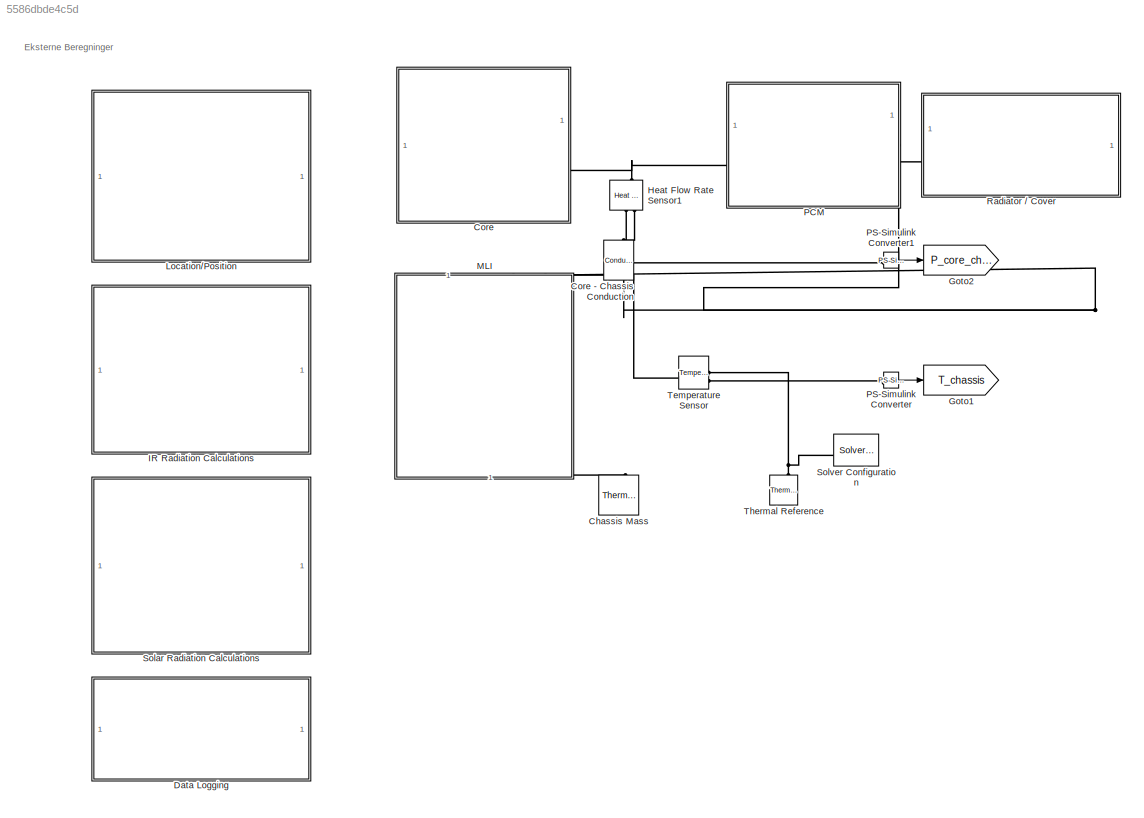
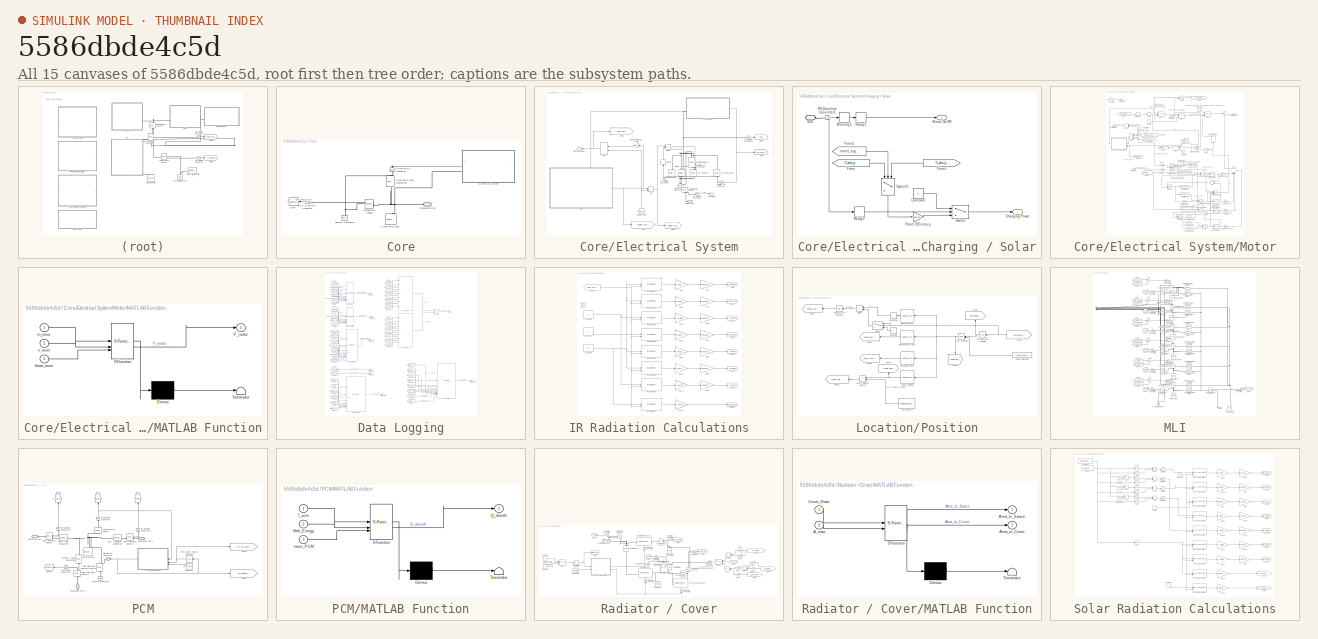
[diagram: thumbnail index - all 15 canvases of the model, root first then tree order]
MODEL slx_5586dbde4c5d
KIND model
CONFIG AbsTol = 1e-3
CONFIG EnableMultiTasking = off
CONFIG FixedStep = auto
CONFIG MaxStep = auto
CONFIG MinStep = auto
CONFIG RelTol = 1e-3
CONFIG SampleTimeConstraint = Unconstrained
CONFIG SolverName = ode15s
CONFIG StartTime = 0.0
CONFIG StopTime = 950400
BLOCK [Reference] Chassis Mass  REF=fl_lib/Thermal/Thermal Elements/Thermal Mass
  NameLocation = right
  SourceBlock = fl_lib/Thermal/Thermal Elements/Thermal Mass
  SourceType = Thermal Mass
BLOCK [SubSystem] Core
BLOCK [Reference] Core - Chassis Conduction  REF=fl_lib/Thermal/Thermal Elements/Conductive Heat
Transfer
  NameLocation = left
  SourceBlock = fl_lib/Thermal/Thermal Elements/Conductive Heat\nTransfer
  SourceType = Conductive Heat\nTransfer
BLOCK [PMIOPort] Core/Connection Port
  NameLocation = top
  Side = Left
BLOCK [SubSystem] Core/Electrical System
  PortSchema = {"entries":[{"content":{"sides":[{"content":{"connectorIds":["Out1","LConn1"]},"type":"ConnectorPlacement.EquallySpacedRectSide","uuid":"5eb77770-fe70-435e-8677-4b4d7ac0582c"},{"content":{"side":"RIGHT"},"type":"ConnectorPlacement.EquallySpacedRectSide","uuid":"a0f9998a-0f7d-46bf-9d08-90cd63ef14df"},{"content":{"side":"TOP"},"type":"ConnectorPlacement.EquallySpacedRectSide","uuid":"4724d342-f879-4...<+208ch>
BLOCK [Sum] Core/Electrical System/Add
  IconShape = rectangular
BLOCK [Sum] Core/Electrical System/Add1
  IconShape = rectangular
  NameLocation = top
BLOCK [Constant] Core/Electrical System/Avionics Power
  NameLocation = right
  Value = P.power_avionics
BLOCK [Reference] Core/Electrical System/Battery (Table-Based)  REF=batteryecm_lib/Battery
(Table-Based)
  LibrarySourceBlock = ee_lib/Sources/Battery\n(Table-Based)
  NameLocation = right
  SourceBlock = batteryecm_lib/Battery\n(Table-Based)
  SourceType = Battery\n(Table-Based)
BLOCK [PMIOPort] Core/Electrical System/Battery Heat
  NameLocation = top
  Side = Left
BLOCK [SubSystem] Core/Electrical System/Charging // Solar
  PortSchema = {"entries":[{"content":{"sides":[{"content":{"connectorIds":["Out2","LConn1"]},"type":"ConnectorPlacement.EquallySpacedRectSide","uuid":"89c34c27-50b0-4e6b-b104-c776795e07f8"},{"content":{"connectorIds":["Out1"],"side":"RIGHT"},"type":"ConnectorPlacement.EquallySpacedRectSide","uuid":"0714ffb1-9cf7-459a-87c4-1e260725356f"},{"content":{"side":"TOP"},"type":"ConnectorPlacement.EquallySpacedRectSide"...<+232ch>
BLOCK [Outport] Core/Electrical System/Charging // Solar/Charging Power
BLOCK [Constant] Core/Electrical System/Charging // Solar/Constant
  Value = 0
BLOCK [From] Core/Electrical System/Charging // Solar/From
  GotoTag = G_solar_panel_driving
  TagVisibility = global
BLOCK [From] Core/Electrical System/Charging // Solar/From1
  GotoTag = G_solar_panel_stopped
  NameLocation = top
  TagVisibility = global
BLOCK [From] Core/Electrical System/Charging // Solar/From2
  GotoTag = cover_signal
  TagVisibility = global
BLOCK [Memory] Core/Electrical System/Charging // Solar/Memory2
  InitialCondition = 0.99
BLOCK [Outport] Core/Electrical System/Charging // Solar/Motor On//Off
  Port = 2
BLOCK [Reference] Core/Electrical System/Charging // Solar/PS-Simulink Converter1  REF=nesl_utility/PS-Simulink
Converter
  SourceBlock = nesl_utility/PS-Simulink\nConverter
  SourceType = PS-Simulink\nConverter
BLOCK [Gain] Core/Electrical System/Charging // Solar/Panel Efficiency
  Gain = Spec.solar_eff
BLOCK [Relay] Core/Electrical System/Charging // Solar/Relay1
  OffSwitchValue = 0.20
  OnSwitchValue = 0.95
BLOCK [Relay] Core/Electrical System/Charging // Solar/Relay2
  OffSwitchValue = 0.98
  OnSwitchValue = 0.99
BLOCK [PMIOPort] Core/Electrical System/Charging // Solar/SOC
  Side = Left
BLOCK [Switch] Core/Electrical System/Charging // Solar/Switch
  InputSameDT = off
  SaturateOnIntegerOverflow = off
  Threshold = 0.5
BLOCK [Switch] Core/Electrical System/Charging // Solar/Switch2
  InputSameDT = off
  NameLocation = left
  SaturateOnIntegerOverflow = off
  Threshold = 0.1
BLOCK [Reference] Core/Electrical System/Current Charging  REF=fl_lib/Electrical/Electrical Sources/Controlled Current
Source
  NameLocation = right
  SourceBlock = fl_lib/Electrical/Electrical Sources/Controlled Current\nSource
  SourceType = Controlled Current\nSource
BLOCK [Reference] Core/Electrical System/Current Draw  REF=fl_lib/Electrical/Electrical Sources/Controlled Current
Source
  NameLocation = right
  SourceBlock = fl_lib/Electrical/Electrical Sources/Controlled Current\nSource
  SourceType = Controlled Current\nSource
BLOCK [Product] Core/Electrical System/Divide
  Inputs = */
BLOCK [Reference] Core/Electrical System/Electrical Reference  REF=fl_lib/Electrical/Electrical Elements/Electrical Reference
  LibrarySourceBlock = ee_lib/Connectors &\nReferences/Electrical Reference
  NameLocation = right
  SourceBlock = fl_lib/Electrical/Electrical Elements/Electrical Reference
  SourceType = Electrical Reference
BLOCK [Outport] Core/Electrical System/Electronics Heat
  NameLocation = top
BLOCK [Goto] Core/Electrical System/Goto
  GotoTag = current_charging
  TagVisibility = global
BLOCK [Goto] Core/Electrical System/Goto1
  GotoTag = SOC
  TagVisibility = global
BLOCK [Goto] Core/Electrical System/Goto2
  GotoTag = power_usage_total
  TagVisibility = global
BLOCK [Goto] Core/Electrical System/Goto3
  GotoTag = electronics_heat_generation
  TagVisibility = global
BLOCK [Goto] Core/Electrical System/Goto4
  GotoTag = power_motor
  TagVisibility = global
BLOCK [Reference] Core/Electrical System/Heat Flow Rate Sensor  REF=fl_lib/Thermal/Thermal Sensors/Heat Flow Rate
Sensor
  NameLocation = left
  SourceBlock = fl_lib/Thermal/Thermal Sensors/Heat Flow Rate\nSensor
  SourceType = Heat Flow Rate\nSensor
BLOCK [Memory] Core/Electrical System/Memory
  InitialCondition = 28
  NameLocation = right
BLOCK [SubSystem] Core/Electrical System/Motor
BLOCK [Gain] Core/Electrical System/Motor Heat Factor (1-eta)
  Gain = 0.1
  NameLocation = top
BLOCK [Logic] Core/Electrical System/Motor/AND
  AllPortsSameDT = off
  IconShape = distinctive
  OutDataTypeStr = boolean
BLOCK [Logic] Core/Electrical System/Motor/AND1
  AllPortsSameDT = off
  IconShape = distinctive
  OutDataTypeStr = boolean
BLOCK [Sum] Core/Electrical System/Motor/Add
  IconShape = rectangular
  NameLocation = top
BLOCK [Sum] Core/Electrical System/Motor/Add1
  IconShape = rectangular
  Inputs = ++++
  NameLocation = top
BLOCK [Sum] Core/Electrical System/Motor/Add2
  IconShape = rectangular
  Inputs = +++
  NameLocation = top
BLOCK [Reference] Core/Electrical System/Motor/Arm Lifting Finish  REF=simulink/Logic and Bit
Operations/Compare
To Constant
  SourceBlock = simulink/Logic and Bit\nOperations/Compare\nTo Constant
  SourceType = Compare To Constant
BLOCK [Reference] Core/Electrical System/Motor/Arm Lifting Start  REF=simulink/Logic and Bit
Operations/Compare
To Constant
  SourceBlock = simulink/Logic and Bit\nOperations/Compare\nTo Constant
  SourceType = Compare To Constant
BLOCK [Reference] Core/Electrical System/Motor/Arm Lowering Time  REF=simulink/Logic and Bit
Operations/Compare
To Constant
  SourceBlock = simulink/Logic and Bit\nOperations/Compare\nTo Constant
  SourceType = Compare To Constant
BLOCK [Reference] Core/Electrical System/Motor/Compare To Constant  REF=simulink/Logic and Bit
Operations/Compare
To Constant
  SourceBlock = simulink/Logic and Bit\nOperations/Compare\nTo Constant
  SourceType = Compare To Constant
BLOCK [Reference] Core/Electrical System/Motor/Compare To Constant4  REF=simulink/Logic and Bit
Operations/Compare
To Constant
  SourceBlock = simulink/Logic and Bit\nOperations/Compare\nTo Constant
  SourceType = Compare To Constant
BLOCK [Constant] Core/Electrical System/Motor/Constant
  NameLocation = top
  Value = P.mass_rover
BLOCK [Constant] Core/Electrical System/Motor/Constant1
  NameLocation = top
  Value = 0.02953488372*test_bat_AH
BLOCK [Constant] Core/Electrical System/Motor/Constant2
  Value = 0
BLOCK [Constant] Core/Electrical System/Motor/Constant3
  NameLocation = top
  Value = test_pcm_mass
BLOCK [Constant] Core/Electrical System/Motor/Constant4
  Value = test_pcm_mass * 244000
BLOCK [DataTypeConversion] Core/Electrical System/Motor/Data Type Conversion
  RndMeth = Floor
  SaturateOnIntegerOverflow = off
BLOCK [DataTypeConversion] Core/Electrical System/Motor/Data Type Conversion1
  RndMeth = Floor
  SaturateOnIntegerOverflow = off
BLOCK [DataTypeConversion] Core/Electrical System/Motor/Data Type Conversion2
  RndMeth = Floor
  SaturateOnIntegerOverflow = off
BLOCK [DataTypeConversion] Core/Electrical System/Motor/Data Type Conversion3
  NameLocation = right
  RndMeth = Floor
  SaturateOnIntegerOverflow = off
BLOCK [DataTypeConversion] Core/Electrical System/Motor/Data Type Conversion4
  NameLocation = top
  RndMeth = Floor
  SaturateOnIntegerOverflow = off
BLOCK [DataTypeConversion] Core/Electrical System/Motor/Data Type Conversion5
  RndMeth = Floor
  SaturateOnIntegerOverflow = off
BLOCK [Gain] Core/Electrical System/Motor/Digging Power
  Gain = P.power_digging
BLOCK [Reference] Core/Electrical System/Motor/Digging time  REF=simulink/Logic and Bit
Operations/Compare
To Constant
  SourceBlock = simulink/Logic and Bit\nOperations/Compare\nTo Constant
  SourceType = Compare To Constant
BLOCK [Constant] Core/Electrical System/Motor/Driving Speed
  NameLocation = top
  Value = P.driving_speed
BLOCK [From] Core/Electrical System/Motor/From
  GotoTag = PCM_total_latent_absorb
  TagVisibility = global
BLOCK [From] Core/Electrical System/Motor/From1
  GotoTag = theta_rover
  TagVisibility = global
BLOCK [From] Core/Electrical System/Motor/From2
  GotoTag = location_route
  TagVisibility = global
BLOCK [Goto] Core/Electrical System/Motor/Goto
  GotoTag = cover_signal
  TagVisibility = global
BLOCK [Goto] Core/Electrical System/Motor/Goto3
  GotoTag = driving_speed
  TagVisibility = global
BLOCK [Integrator] Core/Electrical System/Motor/Integrator
  ExternalReset = rising
BLOCK [Integrator] Core/Electrical System/Motor/Integrator1
  ExternalReset = rising
BLOCK [Gain] Core/Electrical System/Motor/Loading Power
  Gain = P.power_load
BLOCK [Logic] Core/Electrical System/Motor/Logical Operator
  AllPortsSameDT = off
  OutDataTypeStr = boolean
BLOCK [Logic] Core/Electrical System/Motor/Logical Operator1
  AllPortsSameDT = off
  Inputs = 3
  NameLocation = top
  OutDataTypeStr = boolean
BLOCK [Logic] Core/Electrical System/Motor/Logical Operator2
  AllPortsSameDT = off
  OutDataTypeStr = boolean
BLOCK [Logic] Core/Electrical System/Motor/Logical Operator3
  AllPortsSameDT = off
  OutDataTypeStr = boolean
BLOCK [Logic] Core/Electrical System/Motor/Logical Operator4
  AllPortsSameDT = off
  Inputs = 4
  Operator = OR
  OutDataTypeStr = boolean
BLOCK [SubSystem] Core/Electrical System/Motor/MATLAB Function
  ErrorFcn = Stateflow.Translate.translate
  NameLocation = top
  PermitHierarchicalResolution = ExplicitOnly
  SFBlockType = MATLAB Function
  TreatAsAtomicUnit = on
BLOCK [Demux] Core/Electrical System/Motor/MATLAB Function/ Demux 
  Outputs = 1
BLOCK [S-Function] Core/Electrical System/Motor/MATLAB Function/ SFunction 
  EnableBusSupport = off
  FunctionName = sf_sfun
  PortCounts = [3 2]
  SFcnIsStateOwnerBlock = off
  SFunctionDeploymentMode = off
  Tag = Stateflow S-Function 2
BLOCK [Terminator] Core/Electrical System/Motor/MATLAB Function/ Terminator 
BLOCK [Outport] Core/Electrical System/Motor/MATLAB Function/P_motor
BLOCK [Inport] Core/Electrical System/Motor/MATLAB Function/m_rover
BLOCK [Inport] Core/Electrical System/Motor/MATLAB Function/theta_rover
  Port = 3
BLOCK [Inport] Core/Electrical System/Motor/MATLAB Function/v_rover
  Port = 2
BLOCK [Memory] Core/Electrical System/Motor/Memory1
BLOCK [Constant] Core/Electrical System/Motor/Motor Off
  NameLocation = top
  Value = 0
BLOCK [Inport] Core/Electrical System/Motor/Motor On//Off charge
BLOCK [Outport] Core/Electrical System/Motor/Motor Power
BLOCK [Constant] Core/Electrical System/Motor/Motor off
  Value = 0
BLOCK [Logic] Core/Electrical System/Motor/NOT
  AllPortsSameDT = off
  IconShape = distinctive
  NameLocation = top
  Operator = NOT
  OutDataTypeStr = boolean
BLOCK [Integrator] Core/Electrical System/Motor/Regolit Grave Tid
  ExternalReset = rising
BLOCK [Relay] Core/Electrical System/Motor/Relay
  OffOutputValue = 1
  OffSwitchValue = 1
  OnOutputValue = 0
  OnSwitchValue = test_pcm_mass * 244000
BLOCK [Sum] Core/Electrical System/Motor/Sum
  Inputs = |++
BLOCK [Sum] Core/Electrical System/Motor/Sum1
  Inputs = |++++
  NameLocation = right
BLOCK [Sum] Core/Electrical System/Motor/Sum3
  Inputs = |++
  NameLocation = top
BLOCK [Switch] Core/Electrical System/Motor/Switch
  InputSameDT = off
  SaturateOnIntegerOverflow = off
  Threshold = 0.5
BLOCK [Switch] Core/Electrical System/Motor/Switch1
  InputSameDT = off
  SaturateOnIntegerOverflow = off
  Threshold = 0.5
BLOCK [Switch] Core/Electrical System/Motor/Switch2
  Criteria = u2 > Threshold
  InputSameDT = off
  SaturateOnIntegerOverflow = off
  Threshold = 0.5
BLOCK [Switch] Core/Electrical System/Motor/Switch3
  InputSameDT = off
  NameLocation = top
  SaturateOnIntegerOverflow = off
  Threshold = 0.5
BLOCK [Terminator] Core/Electrical System/Motor/Terminator
  NameLocation = top
BLOCK [Terminator] Core/Electrical System/Motor/Terminator1
BLOCK [Terminator] Core/Electrical System/Motor/Terminator2
  NameLocation = top
BLOCK [Integrator] Core/Electrical System/Motor/Total Grave Tid
BLOCK [Gain] Core/Electrical System/Motor/Undloading Arm Power
  Gain = P.power_load
BLOCK [Gain] Core/Electrical System/Motor/Undloading Power1
  Gain = 9.66
BLOCK [Reference] Core/Electrical System/Motor/Unloading Finish  REF=simulink/Logic and Bit
Operations/Compare
To Constant
  SourceBlock = simulink/Logic and Bit\nOperations/Compare\nTo Constant
  SourceType = Compare To Constant
BLOCK [Reference] Core/Electrical System/Motor/Unloading start  REF=simulink/Logic and Bit
Operations/Compare
To Constant
  SourceBlock = simulink/Logic and Bit\nOperations/Compare\nTo Constant
  SourceType = Compare To Constant
BLOCK [Gain] Core/Electrical System/Motor/kg//s
  Gain = 0.848
BLOCK [Gain] Core/Electrical System/Motor/kg//s1
  Gain = 0.848
BLOCK [Reference] Core/Electrical System/PS-Simulink Converter  REF=nesl_utility/PS-Simulink
Converter
  NameLocation = top
  SourceBlock = nesl_utility/PS-Simulink\nConverter
  SourceType = PS-Simulink\nConverter
BLOCK [Reference] Core/Electrical System/PS-Simulink Converter1  REF=nesl_utility/PS-Simulink
Converter
  SourceBlock = nesl_utility/PS-Simulink\nConverter
  SourceType = PS-Simulink\nConverter
BLOCK [Reference] Core/Electrical System/PS-Simulink Converter2  REF=nesl_utility/PS-Simulink
Converter
  SourceBlock = nesl_utility/PS-Simulink\nConverter
  SourceType = PS-Simulink\nConverter
BLOCK [Reference] Core/Electrical System/Simulink-PS Converter  REF=nesl_utility/Simulink-PS
Converter
  NameLocation = left
  SourceBlock = nesl_utility/Simulink-PS\nConverter
  SourceType = Simulink-PS\nConverter
BLOCK [Reference] Core/Electrical System/Simulink-PS Converter1  REF=nesl_utility/Simulink-PS
Converter
  NameLocation = top
  SourceBlock = nesl_utility/Simulink-PS\nConverter
  SourceType = Simulink-PS\nConverter
BLOCK [Reference] Core/Electrical System/System Resistance  REF=fl_lib/Electrical/Electrical Elements/Thermal Resistor
  NameLocation = right
  SourceBlock = fl_lib/Electrical/Electrical Elements/Thermal Resistor
  SourceType = Thermal Resistor
BLOCK [Terminator] Core/Electrical System/Terminator
BLOCK [Reference] Core/Electrical System/Voltage Sensor  REF=fl_lib/Electrical/Electrical Sensors/Voltage Sensor
  NameLocation = right
  SourceBlock = fl_lib/Electrical/Electrical Sensors/Voltage Sensor
  SourceType = Voltage Sensor
BLOCK [Reference] Core/Electronics Heat Generation  REF=fl_lib/Thermal/Thermal Sources/Controlled Heat Flow
Rate Source
  NameLocation = left
  SourceBlock = fl_lib/Thermal/Thermal Sources/Controlled Heat Flow\nRate Source
  SourceType = Controlled Heat Flow\nRate Source
BLOCK [Reference] Core/Electronics Mass  REF=fl_lib/Thermal/Thermal Elements/Thermal Mass
  NameLocation = right
  SourceBlock = fl_lib/Thermal/Thermal Elements/Thermal Mass
  SourceType = Thermal Mass
BLOCK [Goto] Core/Goto
  GotoTag = T_electronics
  NameLocation = top
  TagVisibility = global
BLOCK [Reference] Core/PS-Simulink Converter  REF=nesl_utility/PS-Simulink
Converter
  NameLocation = top
  SourceBlock = nesl_utility/PS-Simulink\nConverter
  SourceType = PS-Simulink\nConverter
BLOCK [Reference] Core/Simulink-PS Converter  REF=nesl_utility/Simulink-PS
Converter
  NameLocation = left
  SourceBlock = nesl_utility/Simulink-PS\nConverter
  SourceType = Simulink-PS\nConverter
BLOCK [Reference] Core/Temperature Sensor  REF=fl_lib/Thermal/Thermal Sensors/Temperature Sensor
  NameLocation = top
  SourceBlock = fl_lib/Thermal/Thermal Sensors/Temperature Sensor
  SourceType = Temperature Sensor
BLOCK [Reference] Core/Thermal Reference  REF=fl_lib/Thermal/Thermal Elements/Thermal Reference
  NameLocation = right
  SourceBlock = fl_lib/Thermal/Thermal Elements/Thermal Reference
  SourceType = Thermal Reference
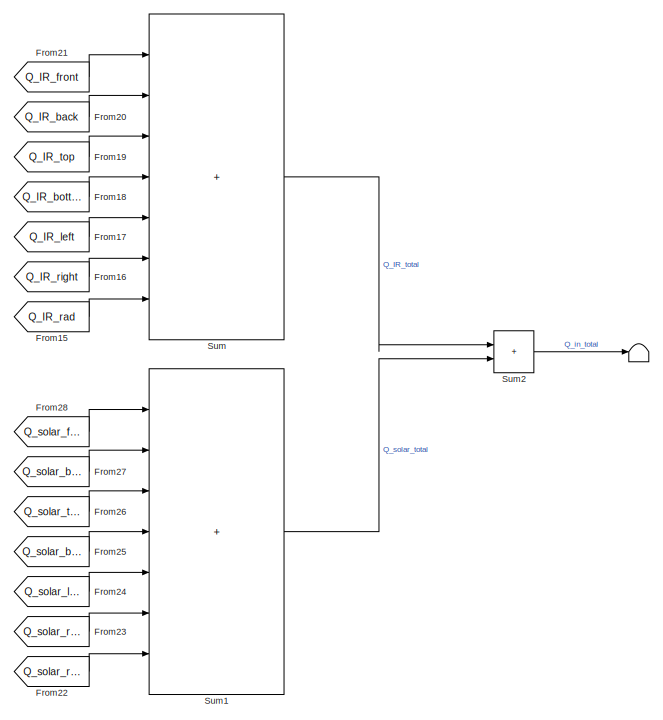
[diagram: Data Logging - part 1/3, top center region]
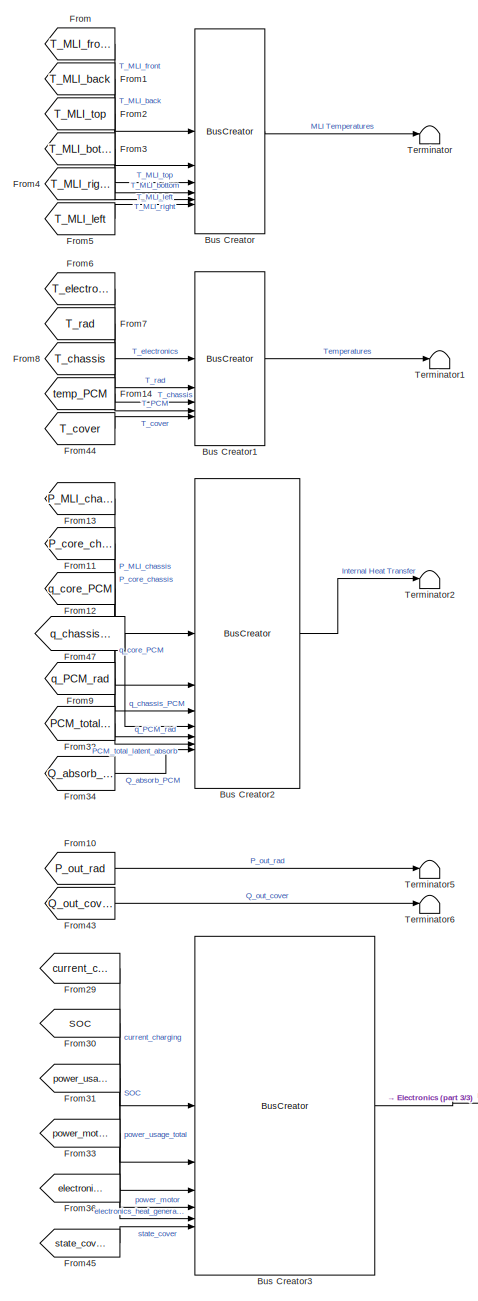
[diagram: Data Logging - part 2/3, left side, full height]
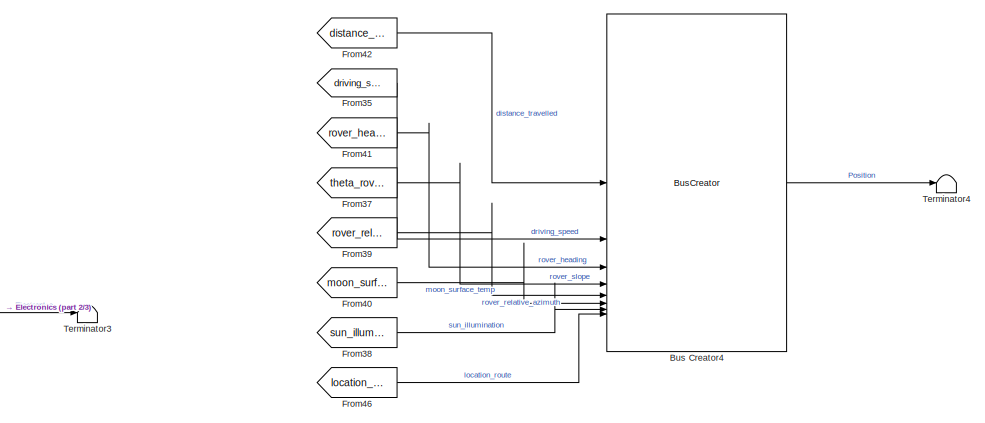
[diagram: Data Logging - part 3/3, bottom center region]
BLOCK [SubSystem] Data Logging
BLOCK [Terminator] Data Logging/ 
BLOCK [BusCreator] Data Logging/Bus Creator
  DisplayOption = bar
  InheritFromInputs = on
  Inputs = 6
BLOCK [BusCreator] Data Logging/Bus Creator1
  DisplayOption = bar
  InheritFromInputs = on
  Inputs = 5
BLOCK [BusCreator] Data Logging/Bus Creator2
  DisplayOption = bar
  InheritFromInputs = on
  Inputs = 7
BLOCK [BusCreator] Data Logging/Bus Creator3
  DisplayOption = bar
  InheritFromInputs = on
  Inputs = 6
BLOCK [BusCreator] Data Logging/Bus Creator4
  DisplayOption = bar
  InheritFromInputs = on
  Inputs = 8
BLOCK [From] Data Logging/From
  GotoTag = T_MLI_front
  TagVisibility = global
BLOCK [From] Data Logging/From1
  GotoTag = T_MLI_back
  TagVisibility = global
BLOCK [From] Data Logging/From10
  GotoTag = P_out_rad
  TagVisibility = global
BLOCK [From] Data Logging/From11
  GotoTag = P_core_chassis
  TagVisibility = global
BLOCK [From] Data Logging/From12
  GotoTag = q_core_PCM
  TagVisibility = global
BLOCK [From] Data Logging/From13
  GotoTag = P_MLI_chassis
  TagVisibility = global
BLOCK [From] Data Logging/From14
  GotoTag = temp_PCM
  TagVisibility = global
BLOCK [From] Data Logging/From15
  GotoTag = Q_IR_rad
  TagVisibility = global
BLOCK [From] Data Logging/From16
  GotoTag = Q_IR_right
  TagVisibility = global
BLOCK [From] Data Logging/From17
  GotoTag = Q_IR_left
  TagVisibility = global
BLOCK [From] Data Logging/From18
  GotoTag = Q_IR_bottom
  TagVisibility = global
BLOCK [From] Data Logging/From19
  GotoTag = Q_IR_top
  TagVisibility = global
BLOCK [From] Data Logging/From2
  GotoTag = T_MLI_top
  TagVisibility = global
BLOCK [From] Data Logging/From20
  GotoTag = Q_IR_back
  TagVisibility = global
BLOCK [From] Data Logging/From21
  GotoTag = Q_IR_front
  TagVisibility = global
BLOCK [From] Data Logging/From22
  GotoTag = Q_solar_rad
  TagVisibility = global
BLOCK [From] Data Logging/From23
  GotoTag = Q_solar_right
  TagVisibility = global
BLOCK [From] Data Logging/From24
  GotoTag = Q_solar_left
  TagVisibility = global
BLOCK [From] Data Logging/From25
  GotoTag = Q_solar_bottom
  TagVisibility = global
BLOCK [From] Data Logging/From26
  GotoTag = Q_solar_top
  TagVisibility = global
BLOCK [From] Data Logging/From27
  GotoTag = Q_solar_back
  TagVisibility = global
BLOCK [From] Data Logging/From28
  GotoTag = Q_solar_front
  TagVisibility = global
BLOCK [From] Data Logging/From29
  GotoTag = current_charging
  TagVisibility = global
BLOCK [From] Data Logging/From3
  GotoTag = T_MLI_bottom
  TagVisibility = global
BLOCK [From] Data Logging/From30
  GotoTag = SOC
  TagVisibility = global
BLOCK [From] Data Logging/From31
  GotoTag = power_usage_total
  TagVisibility = global
BLOCK [From] Data Logging/From32
  GotoTag = PCM_total_latent_absorb
  TagVisibility = global
BLOCK [From] Data Logging/From33
  GotoTag = power_motor
  TagVisibility = global
BLOCK [From] Data Logging/From34
  GotoTag = Q_absorb_PCM
  TagVisibility = global
BLOCK [From] Data Logging/From35
  GotoTag = driving_speed
  TagVisibility = global
BLOCK [From] Data Logging/From36
  GotoTag = electronics_heat_generation
  TagVisibility = global
BLOCK [From] Data Logging/From37
  GotoTag = theta_rover
  TagVisibility = global
BLOCK [From] Data Logging/From38
  GotoTag = sun_illumination
  TagVisibility = global
BLOCK [From] Data Logging/From39
  GotoTag = rover_relative_azimuth
  TagVisibility = global
BLOCK [From] Data Logging/From4
  GotoTag = T_MLI_right
  TagVisibility = global
BLOCK [From] Data Logging/From40
  GotoTag = moon_surface_temp
  TagVisibility = global
BLOCK [From] Data Logging/From41
  GotoTag = rover_heading
  TagVisibility = global
BLOCK [From] Data Logging/From42
  GotoTag = distance_travelled
  TagVisibility = global
BLOCK [From] Data Logging/From43
  GotoTag = Q_out_cover
  TagVisibility = global
BLOCK [From] Data Logging/From44
  GotoTag = T_cover
  TagVisibility = global
BLOCK [From] Data Logging/From45
  GotoTag = state_cover
  TagVisibility = global
BLOCK [From] Data Logging/From46
  GotoTag = location_route
  TagVisibility = global
BLOCK [From] Data Logging/From47
  GotoTag = q_chassis_PCM
  TagVisibility = global
BLOCK [From] Data Logging/From5
  GotoTag = T_MLI_left
  TagVisibility = global
BLOCK [From] Data Logging/From6
  GotoTag = T_electronics
  TagVisibility = global
BLOCK [From] Data Logging/From7
  GotoTag = T_rad
  TagVisibility = global
BLOCK [From] Data Logging/From8
  GotoTag = T_chassis
  TagVisibility = global
BLOCK [From] Data Logging/From9
  GotoTag = q_PCM_rad
  TagVisibility = global
BLOCK [Sum] Data Logging/Sum
  IconShape = rectangular
  Inputs = |+++++++
BLOCK [Sum] Data Logging/Sum1
  IconShape = rectangular
  Inputs = |+++++++
BLOCK [Sum] Data Logging/Sum2
  IconShape = rectangular
  Inputs = |++
BLOCK [Terminator] Data Logging/Terminator
BLOCK [Terminator] Data Logging/Terminator1
BLOCK [Terminator] Data Logging/Terminator2
BLOCK [Terminator] Data Logging/Terminator3
BLOCK [Terminator] Data Logging/Terminator4
BLOCK [Terminator] Data Logging/Terminator5
BLOCK [Terminator] Data Logging/Terminator6
BLOCK [Goto] Goto1
  GotoTag = T_chassis
  TagVisibility = global
BLOCK [Goto] Goto2
  GotoTag = P_core_chassis
  TagVisibility = global
BLOCK [Reference] Heat Flow Rate Sensor1  REF=fl_lib/Thermal/Thermal Sensors/Heat Flow Rate
Sensor
  NameLocation = left
  SourceBlock = fl_lib/Thermal/Thermal Sensors/Heat Flow Rate\nSensor
  SourceType = Heat Flow Rate\nSensor
BLOCK [SubSystem] IR Radiation Calculations
BLOCK [Reference] IR Radiation Calculations/ IR varmeeffekt  REF=G_IR_function/ IR varmeeffekt
  SourceBlock = G_IR_function/ IR varmeeffekt
  SourceType = SubSystem
BLOCK [Reference] IR Radiation Calculations/ IR varmeeffekt1  REF=G_IR_function/ IR varmeeffekt
  SourceBlock = G_IR_function/ IR varmeeffekt
  SourceType = SubSystem
BLOCK [Reference] IR Radiation Calculations/ IR varmeeffekt2  REF=G_IR_function/ IR varmeeffekt
  SourceBlock = G_IR_function/ IR varmeeffekt
  SourceType = SubSystem
BLOCK [Reference] IR Radiation Calculations/ IR varmeeffekt3  REF=G_IR_function/ IR varmeeffekt
  SourceBlock = G_IR_function/ IR varmeeffekt
  SourceType = SubSystem
BLOCK [Reference] IR Radiation Calculations/ IR varmeeffekt4  REF=G_IR_function/ IR varmeeffekt
  SourceBlock = G_IR_function/ IR varmeeffekt
  SourceType = SubSystem
BLOCK [Reference] IR Radiation Calculations/ IR varmeeffekt5  REF=G_IR_function/ IR varmeeffekt
  SourceBlock = G_IR_function/ IR varmeeffekt
  SourceType = SubSystem
BLOCK [Reference] IR Radiation Calculations/ IR varmeeffekt6  REF=G_IR_function/ IR varmeeffekt
  SourceBlock = G_IR_function/ IR varmeeffekt
  SourceType = SubSystem
BLOCK [Reference] IR Radiation Calculations/ IR varmeeffekt7  REF=G_IR_function/ IR varmeeffekt
  SourceBlock = G_IR_function/ IR varmeeffekt
  SourceType = SubSystem
BLOCK [Constant] IR Radiation Calculations/Constant
BLOCK [Constant] IR Radiation Calculations/Constant2
  Value = 0.5
BLOCK [Constant] IR Radiation Calculations/Constant3
  Value = 0
BLOCK [From] IR Radiation Calculations/From
  GotoTag = moon_surface_temp
  TagVisibility = global
BLOCK [Gain] IR Radiation Calculations/Gain
  Gain = Area.front
BLOCK [Gain] IR Radiation Calculations/Gain1
  Gain = Spec.epsilon_mli
BLOCK [Gain] IR Radiation Calculations/Gain10
  Gain = Area.right
BLOCK [Gain] IR Radiation Calculations/Gain11
  Gain = Spec.epsilon_mli
BLOCK [Gain] IR Radiation Calculations/Gain12
  Gain = Area.rad
BLOCK [Gain] IR Radiation Calculations/Gain13
  Gain = Spec.epsilon_rad
BLOCK [Gain] IR Radiation Calculations/Gain14
  Gain = Area.rad
BLOCK [Gain] IR Radiation Calculations/Gain2
  Gain = Area.back
BLOCK [Gain] IR Radiation Calculations/Gain3
  Gain = Spec.epsilon_mli
BLOCK [Gain] IR Radiation Calculations/Gain4
  Gain = Area.top
BLOCK [Gain] IR Radiation Calculations/Gain5
  Gain = Spec.epsilon_mli
BLOCK [Gain] IR Radiation Calculations/Gain6
  Gain = Area.bottom
BLOCK [Gain] IR Radiation Calculations/Gain7
  Gain = Spec.epsilon_mli
BLOCK [Gain] IR Radiation Calculations/Gain8
  Gain = Area.left
BLOCK [Gain] IR Radiation Calculations/Gain9
  Gain = Spec.epsilon_mli
BLOCK [Goto] IR Radiation Calculations/Goto
  GotoTag = Q_IR_front
  TagVisibility = global
BLOCK [Goto] IR Radiation Calculations/Goto1
  GotoTag = Q_IR_back
  TagVisibility = global
BLOCK [Goto] IR Radiation Calculations/Goto2
  GotoTag = Q_IR_top
  TagVisibility = global
BLOCK [Goto] IR Radiation Calculations/Goto3
  GotoTag = Q_IR_bottom
  TagVisibility = global
BLOCK [Goto] IR Radiation Calculations/Goto4
  GotoTag = Q_IR_left
  TagVisibility = global
BLOCK [Goto] IR Radiation Calculations/Goto5
  GotoTag = Q_IR_right
  TagVisibility = global
BLOCK [Goto] IR Radiation Calculations/Goto6
  GotoTag = Q_IR_rad
  TagVisibility = global
BLOCK [Goto] IR Radiation Calculations/Goto7
  GotoTag = G_IR_cover
  TagVisibility = global
BLOCK [SubSystem] Location//Position
BLOCK [Constant] Location//Position/Constant
  NameLocation = top
BLOCK [Derivative] Location//Position/Derivative
  NameLocation = top
BLOCK [Product] Location//Position/Divide
  Inputs = */
  NameLocation = top
BLOCK [Lookup_n-D] Location//Position/Elevation Data
  BreakpointsForDimension1 = route_distance
  InputPortMap = u0
  InternalRulePriority = Speed
  NumberOfTableDimensions = 1
  RndMeth = Simplest
  Table = route_elevation
BLOCK [From] Location//Position/From
  GotoTag = driving_speed
  NameLocation = top
  TagVisibility = global
BLOCK [Goto] Location//Position/Goto
  GotoTag = theta_rover
  NameLocation = top
  TagVisibility = global
BLOCK [Goto] Location//Position/Goto1
  GotoTag = moon_surface_temp
  NameLocation = top
  TagVisibility = global
BLOCK [Goto] Location//Position/Goto2
  GotoTag = sun_illumination
  NameLocation = top
  TagVisibility = global
BLOCK [Goto] Location//Position/Goto3
  GotoTag = rover_relative_azimuth
  NameLocation = top
  TagVisibility = global
BLOCK [Goto] Location//Position/Goto4
  GotoTag = distance_travelled
  NameLocation = right
  TagVisibility = global
BLOCK [Goto] Location//Position/Goto5
  GotoTag = rover_heading
  NameLocation = right
  TagVisibility = global
BLOCK [Goto] Location//Position/Goto6
  GotoTag = location_route
  NameLocation = left
  TagVisibility = global
BLOCK [Lookup_n-D] Location//Position/Illumination Data
  BreakpointsForDimension1 = route_distance
  InputPortMap = u0
  InternalRulePriority = Speed
  NumberOfTableDimensions = 1
  RndMeth = Simplest
  Table = route_illum
BLOCK [Math] Location//Position/Math Function
  NameLocation = top
  Operator = mod
BLOCK [Constant] Location//Position/Route Distance
  Value = route_max_dist
BLOCK [Lookup_n-D] Location//Position/Rover Heading
  BreakpointsForDimension1 = route_distance
  InputPortMap = u0
  InternalRulePriority = Speed
  NumberOfTableDimensions = 1
  RndMeth = Simplest
  Table = route_heading
BLOCK [Sum] Location//Position/Rover Relative Azimuth
  IconShape = rectangular
  Inputs = +-
BLOCK [Constant] Location//Position/Sun Azimuth
  Value = deg2rad(P.gamma_start_sun)
BLOCK [Switch] Location//Position/Switch
  Criteria = u2 > Threshold
  InputSameDT = off
  NameLocation = top
  SaturateOnIntegerOverflow = off
  Threshold = 0.01
BLOCK [Lookup_n-D] Location//Position/Temperature Data
  BreakpointsForDimension1 = route_distance
  InputPortMap = u0
  InternalRulePriority = Speed
  NumberOfTableDimensions = 1
  RndMeth = Simplest
  Table = route_temp
BLOCK [Integrator] Location//Position/Total Distance Travelled
BLOCK [Trigonometry] Location//Position/Trigonometric Function
  NameLocation = top
  Operator = atan
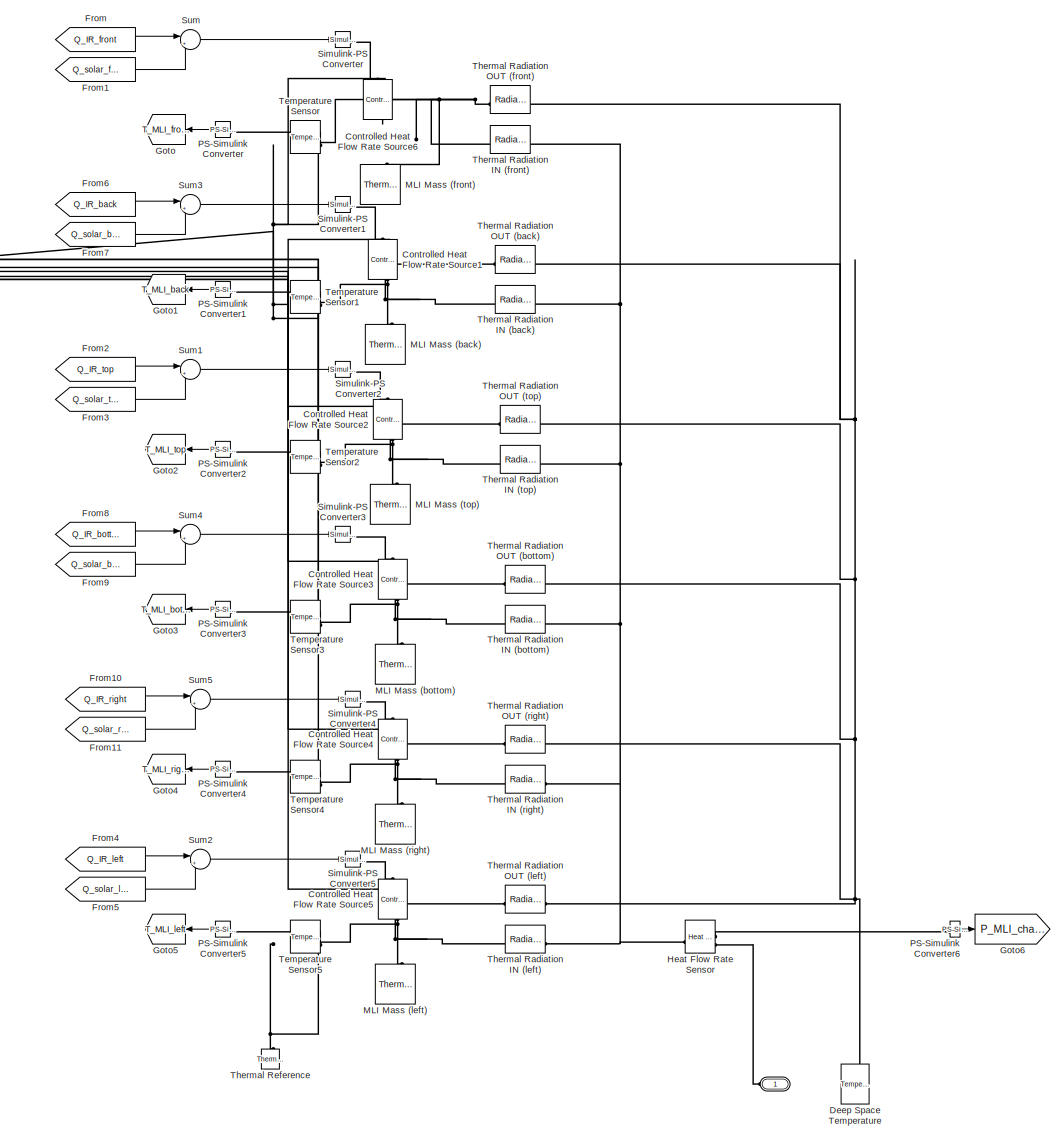
[diagram: MLI - part 1/1, most of the canvas]
BLOCK [SubSystem] MLI
  PortSchema = {"entries":[{"content":{"sides":[{"content":{},"type":"ConnectorPlacement.EquallySpacedRectSide","uuid":"d47134fd-2d2c-4c50-b6c5-63f88e3e0e34"},{"content":{"side":"RIGHT"},"type":"ConnectorPlacement.EquallySpacedRectSide","uuid":"923c09c8-b9a5-46f2-be61-1fea53404d69"},{"content":{"connectorIds":["LConn1"],"side":"TOP"},"type":"ConnectorPlacement.EquallySpacedRectSide","uuid":"df6cd953-e26d-43a4-8b...<+202ch>
BLOCK [PMIOPort] MLI/ 
  NameLocation = top
  Side = Left
BLOCK [Reference] MLI/Controlled Heat Flow Rate Source1  REF=fl_lib/Thermal/Thermal Sources/Controlled Heat Flow
Rate Source
  NameLocation = left
  SourceBlock = fl_lib/Thermal/Thermal Sources/Controlled Heat Flow\nRate Source
  SourceType = Controlled Heat Flow\nRate Source
BLOCK [Reference] MLI/Controlled Heat Flow Rate Source2  REF=fl_lib/Thermal/Thermal Sources/Controlled Heat Flow
Rate Source
  NameLocation = left
  SourceBlock = fl_lib/Thermal/Thermal Sources/Controlled Heat Flow\nRate Source
  SourceType = Controlled Heat Flow\nRate Source
BLOCK [Reference] MLI/Controlled Heat Flow Rate Source3  REF=fl_lib/Thermal/Thermal Sources/Controlled Heat Flow
Rate Source
  NameLocation = left
  SourceBlock = fl_lib/Thermal/Thermal Sources/Controlled Heat Flow\nRate Source
  SourceType = Controlled Heat Flow\nRate Source
BLOCK [Reference] MLI/Controlled Heat Flow Rate Source4  REF=fl_lib/Thermal/Thermal Sources/Controlled Heat Flow
Rate Source
  NameLocation = left
  SourceBlock = fl_lib/Thermal/Thermal Sources/Controlled Heat Flow\nRate Source
  SourceType = Controlled Heat Flow\nRate Source
BLOCK [Reference] MLI/Controlled Heat Flow Rate Source5  REF=fl_lib/Thermal/Thermal Sources/Controlled Heat Flow
Rate Source
  NameLocation = left
  SourceBlock = fl_lib/Thermal/Thermal Sources/Controlled Heat Flow\nRate Source
  SourceType = Controlled Heat Flow\nRate Source
BLOCK [Reference] MLI/Controlled Heat Flow Rate Source6  REF=fl_lib/Thermal/Thermal Sources/Controlled Heat Flow
Rate Source
  NameLocation = left
  SourceBlock = fl_lib/Thermal/Thermal Sources/Controlled Heat Flow\nRate Source
  SourceType = Controlled Heat Flow\nRate Source
BLOCK [Reference] MLI/Deep Space Temperature  REF=fl_lib/Thermal/Thermal Sources/Temperature Source
  NameLocation = right
  SourceBlock = fl_lib/Thermal/Thermal Sources/Temperature Source
  SourceType = Temperature Source
BLOCK [From] MLI/From
  GotoTag = Q_IR_front
  TagVisibility = global
BLOCK [From] MLI/From1
  GotoTag = Q_solar_front
  TagVisibility = global
BLOCK [From] MLI/From10
  GotoTag = Q_IR_right
  TagVisibility = global
BLOCK [From] MLI/From11
  GotoTag = Q_solar_right
  TagVisibility = global
BLOCK [From] MLI/From2
  GotoTag = Q_IR_top
  TagVisibility = global
BLOCK [From] MLI/From3
  GotoTag = Q_solar_top
  TagVisibility = global
BLOCK [From] MLI/From4
  GotoTag = Q_IR_left
  TagVisibility = global
BLOCK [From] MLI/From5
  GotoTag = Q_solar_left
  TagVisibility = global
BLOCK [From] MLI/From6
  GotoTag = Q_IR_back
  TagVisibility = global
BLOCK [From] MLI/From7
  GotoTag = Q_solar_back
  TagVisibility = global
BLOCK [From] MLI/From8
  GotoTag = Q_IR_bottom
  TagVisibility = global
BLOCK [From] MLI/From9
  GotoTag = Q_solar_bottom
  TagVisibility = global
BLOCK [Goto] MLI/Goto
  GotoTag = T_MLI_front
  NameLocation = top
  TagVisibility = global
BLOCK [Goto] MLI/Goto1
  GotoTag = T_MLI_back
  NameLocation = top
  TagVisibility = global
BLOCK [Goto] MLI/Goto2
  GotoTag = T_MLI_top
  NameLocation = top
  TagVisibility = global
BLOCK [Goto] MLI/Goto3
  GotoTag = T_MLI_bottom
  NameLocation = top
  TagVisibility = global
BLOCK [Goto] MLI/Goto4
  GotoTag = T_MLI_right
  NameLocation = top
  TagVisibility = global
BLOCK [Goto] MLI/Goto5
  GotoTag = T_MLI_left
  NameLocation = top
  TagVisibility = global
BLOCK [Goto] MLI/Goto6
  GotoTag = P_MLI_chassis
  TagVisibility = global
BLOCK [Reference] MLI/Heat Flow Rate Sensor  REF=fl_lib/Thermal/Thermal Sensors/Heat Flow Rate
Sensor
  SourceBlock = fl_lib/Thermal/Thermal Sensors/Heat Flow Rate\nSensor
  SourceType = Heat Flow Rate\nSensor
BLOCK [Reference] MLI/MLI Mass (back)  REF=fl_lib/Thermal/Thermal Elements/Thermal Mass
  NameLocation = right
  SourceBlock = fl_lib/Thermal/Thermal Elements/Thermal Mass
  SourceType = Thermal Mass
BLOCK [Reference] MLI/MLI Mass (bottom)  REF=fl_lib/Thermal/Thermal Elements/Thermal Mass
  NameLocation = right
  SourceBlock = fl_lib/Thermal/Thermal Elements/Thermal Mass
  SourceType = Thermal Mass
BLOCK [Reference] MLI/MLI Mass (front)  REF=fl_lib/Thermal/Thermal Elements/Thermal Mass
  NameLocation = right
  SourceBlock = fl_lib/Thermal/Thermal Elements/Thermal Mass
  SourceType = Thermal Mass
BLOCK [Reference] MLI/MLI Mass (left)  REF=fl_lib/Thermal/Thermal Elements/Thermal Mass
  NameLocation = right
  SourceBlock = fl_lib/Thermal/Thermal Elements/Thermal Mass
  SourceType = Thermal Mass
BLOCK [Reference] MLI/MLI Mass (right)  REF=fl_lib/Thermal/Thermal Elements/Thermal Mass
  NameLocation = right
  SourceBlock = fl_lib/Thermal/Thermal Elements/Thermal Mass
  SourceType = Thermal Mass
BLOCK [Reference] MLI/MLI Mass (top)  REF=fl_lib/Thermal/Thermal Elements/Thermal Mass
  NameLocation = right
  SourceBlock = fl_lib/Thermal/Thermal Elements/Thermal Mass
  SourceType = Thermal Mass
BLOCK [Reference] MLI/PS-Simulink Converter  REF=nesl_utility/PS-Simulink
Converter
  NameLocation = top
  SourceBlock = nesl_utility/PS-Simulink\nConverter
  SourceType = PS-Simulink\nConverter
BLOCK [Reference] MLI/PS-Simulink Converter1  REF=nesl_utility/PS-Simulink
Converter
  NameLocation = top
  SourceBlock = nesl_utility/PS-Simulink\nConverter
  SourceType = PS-Simulink\nConverter
BLOCK [Reference] MLI/PS-Simulink Converter2  REF=nesl_utility/PS-Simulink
Converter
  NameLocation = top
  SourceBlock = nesl_utility/PS-Simulink\nConverter
  SourceType = PS-Simulink\nConverter
BLOCK [Reference] MLI/PS-Simulink Converter3  REF=nesl_utility/PS-Simulink
Converter
  NameLocation = top
  SourceBlock = nesl_utility/PS-Simulink\nConverter
  SourceType = PS-Simulink\nConverter
BLOCK [Reference] MLI/PS-Simulink Converter4  REF=nesl_utility/PS-Simulink
Converter
  NameLocation = top
  SourceBlock = nesl_utility/PS-Simulink\nConverter
  SourceType = PS-Simulink\nConverter
BLOCK [Reference] MLI/PS-Simulink Converter5  REF=nesl_utility/PS-Simulink
Converter
  NameLocation = top
  SourceBlock = nesl_utility/PS-Simulink\nConverter
  SourceType = PS-Simulink\nConverter
BLOCK [Reference] MLI/PS-Simulink Converter6  REF=nesl_utility/PS-Simulink
Converter
  SourceBlock = nesl_utility/PS-Simulink\nConverter
  SourceType = PS-Simulink\nConverter
BLOCK [Reference] MLI/Simulink-PS Converter  REF=nesl_utility/Simulink-PS
Converter
  SourceBlock = nesl_utility/Simulink-PS\nConverter
  SourceType = Simulink-PS\nConverter
BLOCK [Reference] MLI/Simulink-PS Converter1  REF=nesl_utility/Simulink-PS
Converter
  SourceBlock = nesl_utility/Simulink-PS\nConverter
  SourceType = Simulink-PS\nConverter
BLOCK [Reference] MLI/Simulink-PS Converter2  REF=nesl_utility/Simulink-PS
Converter
  SourceBlock = nesl_utility/Simulink-PS\nConverter
  SourceType = Simulink-PS\nConverter
BLOCK [Reference] MLI/Simulink-PS Converter3  REF=nesl_utility/Simulink-PS
Converter
  SourceBlock = nesl_utility/Simulink-PS\nConverter
  SourceType = Simulink-PS\nConverter
BLOCK [Reference] MLI/Simulink-PS Converter4  REF=nesl_utility/Simulink-PS
Converter
  SourceBlock = nesl_utility/Simulink-PS\nConverter
  SourceType = Simulink-PS\nConverter
BLOCK [Reference] MLI/Simulink-PS Converter5  REF=nesl_utility/Simulink-PS
Converter
  SourceBlock = nesl_utility/Simulink-PS\nConverter
  SourceType = Simulink-PS\nConverter
BLOCK [Sum] MLI/Sum
  Inputs = |++
BLOCK [Sum] MLI/Sum1
  Inputs = |++
BLOCK [Sum] MLI/Sum2
  Inputs = |++
BLOCK [Sum] MLI/Sum3
  Inputs = |++
BLOCK [Sum] MLI/Sum4
  Inputs = |++
BLOCK [Sum] MLI/Sum5
  Inputs = |++
BLOCK [Reference] MLI/Temperature Sensor  REF=fl_lib/Thermal/Thermal Sensors/Temperature Sensor
  NameLocation = top
  SourceBlock = fl_lib/Thermal/Thermal Sensors/Temperature Sensor
  SourceType = Temperature Sensor
BLOCK [Reference] MLI/Temperature Sensor1  REF=fl_lib/Thermal/Thermal Sensors/Temperature Sensor
  NameLocation = top
  SourceBlock = fl_lib/Thermal/Thermal Sensors/Temperature Sensor
  SourceType = Temperature Sensor
BLOCK [Reference] MLI/Temperature Sensor2  REF=fl_lib/Thermal/Thermal Sensors/Temperature Sensor
  NameLocation = top
  SourceBlock = fl_lib/Thermal/Thermal Sensors/Temperature Sensor
  SourceType = Temperature Sensor
BLOCK [Reference] MLI/Temperature Sensor3  REF=fl_lib/Thermal/Thermal Sensors/Temperature Sensor
  NameLocation = top
  SourceBlock = fl_lib/Thermal/Thermal Sensors/Temperature Sensor
  SourceType = Temperature Sensor
BLOCK [Reference] MLI/Temperature Sensor4  REF=fl_lib/Thermal/Thermal Sensors/Temperature Sensor
  NameLocation = top
  SourceBlock = fl_lib/Thermal/Thermal Sensors/Temperature Sensor
  SourceType = Temperature Sensor
BLOCK [Reference] MLI/Temperature Sensor5  REF=fl_lib/Thermal/Thermal Sensors/Temperature Sensor
  NameLocation = top
  SourceBlock = fl_lib/Thermal/Thermal Sensors/Temperature Sensor
  SourceType = Temperature Sensor
BLOCK [Reference] MLI/Thermal Radiation IN (back)  REF=fl_lib/Thermal/Thermal Elements/Radiative Heat
Transfer
  SourceBlock = fl_lib/Thermal/Thermal Elements/Radiative Heat\nTransfer
  SourceType = Radiative Heat\nTransfer
BLOCK [Reference] MLI/Thermal Radiation IN (bottom)  REF=fl_lib/Thermal/Thermal Elements/Radiative Heat
Transfer
  SourceBlock = fl_lib/Thermal/Thermal Elements/Radiative Heat\nTransfer
  SourceType = Radiative Heat\nTransfer
BLOCK [Reference] MLI/Thermal Radiation IN (front)  REF=fl_lib/Thermal/Thermal Elements/Radiative Heat
Transfer
  SourceBlock = fl_lib/Thermal/Thermal Elements/Radiative Heat\nTransfer
  SourceType = Radiative Heat\nTransfer
BLOCK [Reference] MLI/Thermal Radiation IN (left)  REF=fl_lib/Thermal/Thermal Elements/Radiative Heat
Transfer
  SourceBlock = fl_lib/Thermal/Thermal Elements/Radiative Heat\nTransfer
  SourceType = Radiative Heat\nTransfer
BLOCK [Reference] MLI/Thermal Radiation IN (right)  REF=fl_lib/Thermal/Thermal Elements/Radiative Heat
Transfer
  SourceBlock = fl_lib/Thermal/Thermal Elements/Radiative Heat\nTransfer
  SourceType = Radiative Heat\nTransfer
BLOCK [Reference] MLI/Thermal Radiation IN (top)  REF=fl_lib/Thermal/Thermal Elements/Radiative Heat
Transfer
  SourceBlock = fl_lib/Thermal/Thermal Elements/Radiative Heat\nTransfer
  SourceType = Radiative Heat\nTransfer
BLOCK [Reference] MLI/Thermal Radiation OUT (back)  REF=fl_lib/Thermal/Thermal Elements/Radiative Heat
Transfer
  SourceBlock = fl_lib/Thermal/Thermal Elements/Radiative Heat\nTransfer
  SourceType = Radiative Heat\nTransfer
BLOCK [Reference] MLI/Thermal Radiation OUT (bottom)  REF=fl_lib/Thermal/Thermal Elements/Radiative Heat
Transfer
  SourceBlock = fl_lib/Thermal/Thermal Elements/Radiative Heat\nTransfer
  SourceType = Radiative Heat\nTransfer
BLOCK [Reference] MLI/Thermal Radiation OUT (front)  REF=fl_lib/Thermal/Thermal Elements/Radiative Heat
Transfer
  SourceBlock = fl_lib/Thermal/Thermal Elements/Radiative Heat\nTransfer
  SourceType = Radiative Heat\nTransfer
BLOCK [Reference] MLI/Thermal Radiation OUT (left)  REF=fl_lib/Thermal/Thermal Elements/Radiative Heat
Transfer
  SourceBlock = fl_lib/Thermal/Thermal Elements/Radiative Heat\nTransfer
  SourceType = Radiative Heat\nTransfer
BLOCK [Reference] MLI/Thermal Radiation OUT (right)  REF=fl_lib/Thermal/Thermal Elements/Radiative Heat
Transfer
  SourceBlock = fl_lib/Thermal/Thermal Elements/Radiative Heat\nTransfer
  SourceType = Radiative Heat\nTransfer
BLOCK [Reference] MLI/Thermal Radiation OUT (top)  REF=fl_lib/Thermal/Thermal Elements/Radiative Heat
Transfer
  SourceBlock = fl_lib/Thermal/Thermal Elements/Radiative Heat\nTransfer
  SourceType = Radiative Heat\nTransfer
BLOCK [Reference] MLI/Thermal Reference  REF=fl_lib/Thermal/Thermal Elements/Thermal Reference
  NameLocation = right
  SourceBlock = fl_lib/Thermal/Thermal Elements/Thermal Reference
  SourceType = Thermal Reference
BLOCK [SubSystem] PCM
  NameLocation = top
  PortSchema = {"entries":[{"content":{"sides":[{"content":{"connectorIds":["LConn1"]},"type":"ConnectorPlacement.EquallySpacedRectSide","uuid":"cc2d76a5-aae3-4925-a0e4-dc7be99489dc"},{"content":{"connectorIds":["RConn1"],"side":"RIGHT"},"type":"ConnectorPlacement.EquallySpacedRectSide","uuid":"f7b181f5-c75d-44bc-8608-f233d383c033"},{"content":{"side":"TOP"},"type":"ConnectorPlacement.EquallySpacedRectSide","uui...<+379ch>
BLOCK [Reference] PCM/Chassis - PCM Conduction  REF=fl_lib/Thermal/Thermal Elements/Conductive Heat
Transfer
  NameLocation = left
  SourceBlock = fl_lib/Thermal/Thermal Elements/Conductive Heat\nTransfer
  SourceType = Conductive Heat\nTransfer
BLOCK [PMIOPort] PCM/Connection Port
  Side = Left
BLOCK [PMIOPort] PCM/Connection Port1
  NameLocation = top
  Port = 2
  Side = Right
BLOCK [PMIOPort] PCM/Connection Port2
  NameLocation = right
  Port = 3
  Side = Right
BLOCK [Constant] PCM/Constant
  NameLocation = top
  Value = test_pcm_mass
BLOCK [Reference] PCM/Controlled Heat Flow Rate Source  REF=fl_lib/Thermal/Thermal Sources/Controlled Heat Flow
Rate Source
  NameLocation = left
  SourceBlock = fl_lib/Thermal/Thermal Sources/Controlled Heat Flow\nRate Source
  SourceType = Controlled Heat Flow\nRate Source
BLOCK [Reference] PCM/Core - PCM Conduction  REF=fl_lib/Thermal/Thermal Elements/Conductive Heat
Transfer
  SourceBlock = fl_lib/Thermal/Thermal Elements/Conductive Heat\nTransfer
  SourceType = Conductive Heat\nTransfer
BLOCK [Goto] PCM/Goto
  GotoTag = Q_absorb_PCM
  TagVisibility = global
BLOCK [Goto] PCM/Goto1
  GotoTag = temp_PCM
  NameLocation = right
  TagVisibility = global
BLOCK [Goto] PCM/Goto2
  GotoTag = q_PCM_rad
  NameLocation = right
  TagVisibility = global
BLOCK [Goto] PCM/Goto3
  GotoTag = q_core_PCM
  NameLocation = right
  TagVisibility = global
BLOCK [Goto] PCM/Goto4
  GotoTag = PCM_total_latent_absorb
  TagVisibility = global
BLOCK [Goto] PCM/Goto5
  GotoTag = q_chassis_PCM
  NameLocation = top
  TagVisibility = global
BLOCK [Reference] PCM/Heat Flow Rate Sensor1  REF=fl_lib/Thermal/Thermal Sensors/Heat Flow Rate
Sensor
  NameLocation = right
  SourceBlock = fl_lib/Thermal/Thermal Sensors/Heat Flow Rate\nSensor
  SourceType = Heat Flow Rate\nSensor
BLOCK [Reference] PCM/Heat Flow Rate Sensor2  REF=fl_lib/Thermal/Thermal Sensors/Heat Flow Rate
Sensor
  SourceBlock = fl_lib/Thermal/Thermal Sensors/Heat Flow Rate\nSensor
  SourceType = Heat Flow Rate\nSensor
BLOCK [Reference] PCM/Heat Flow Rate Sensor3  REF=fl_lib/Thermal/Thermal Sensors/Heat Flow Rate
Sensor
  SourceBlock = fl_lib/Thermal/Thermal Sensors/Heat Flow Rate\nSensor
  SourceType = Heat Flow Rate\nSensor
BLOCK [SubSystem] PCM/MATLAB Function
  ErrorFcn = Stateflow.Translate.translate
  NameLocation = top
  PermitHierarchicalResolution = ExplicitOnly
  SFBlockType = MATLAB Function
  TreatAsAtomicUnit = on
BLOCK [Demux] PCM/MATLAB Function/ Demux 
  Outputs = 1
BLOCK [S-Function] PCM/MATLAB Function/ SFunction 
  EnableBusSupport = off
  FunctionName = sf_sfun
  PortCounts = [3 2]
  SFcnIsStateOwnerBlock = off
  SFunctionDeploymentMode = off
  Tag = Stateflow S-Function 1
BLOCK [Terminator] PCM/MATLAB Function/ Terminator 
BLOCK [Inport] PCM/MATLAB Function/Melt_Energy
  Port = 2
BLOCK [Outport] PCM/MATLAB Function/Q_absorb
BLOCK [Inport] PCM/MATLAB Function/T_pcm
BLOCK [Inport] PCM/MATLAB Function/mass_PCM
  Port = 3
BLOCK [Reference] PCM/PCM - Radiator Conduction  REF=fl_lib/Thermal/Thermal Elements/Conductive Heat
Transfer
  SourceBlock = fl_lib/Thermal/Thermal Elements/Conductive Heat\nTransfer
  SourceType = Conductive Heat\nTransfer
BLOCK [Reference] PCM/PS-Simulink Converter  REF=nesl_utility/PS-Simulink
Converter
  NameLocation = right
  SourceBlock = nesl_utility/PS-Simulink\nConverter
  SourceType = PS-Simulink\nConverter
BLOCK [Reference] PCM/PS-Simulink Converter1  REF=nesl_utility/PS-Simulink
Converter
  NameLocation = top
  SourceBlock = nesl_utility/PS-Simulink\nConverter
  SourceType = PS-Simulink\nConverter
BLOCK [Reference] PCM/PS-Simulink Converter3  REF=nesl_utility/PS-Simulink
Converter
  NameLocation = right
  SourceBlock = nesl_utility/PS-Simulink\nConverter
  SourceType = PS-Simulink\nConverter
BLOCK [Reference] PCM/PS-Simulink Converter4  REF=nesl_utility/PS-Simulink
Converter
  NameLocation = right
  SourceBlock = nesl_utility/PS-Simulink\nConverter
  SourceType = PS-Simulink\nConverter
BLOCK [Reference] PCM/Simulink-PS Converter  REF=nesl_utility/Simulink-PS
Converter
  NameLocation = top
  SourceBlock = nesl_utility/Simulink-PS\nConverter
  SourceType = Simulink-PS\nConverter
BLOCK [Reference] PCM/Temperature Sensor  REF=fl_lib/Thermal/Thermal Sensors/Temperature Sensor
  NameLocation = right
  SourceBlock = fl_lib/Thermal/Thermal Sensors/Temperature Sensor
  SourceType = Temperature Sensor
BLOCK [Reference] PCM/Thermal Mass  REF=fl_lib/Thermal/Thermal Elements/Thermal Mass
  NameLocation = right
  SourceBlock = fl_lib/Thermal/Thermal Elements/Thermal Mass
  SourceType = Thermal Mass
BLOCK [Reference] PCM/Thermal Reference  REF=fl_lib/Thermal/Thermal Elements/Thermal Reference
  NameLocation = right
  SourceBlock = fl_lib/Thermal/Thermal Elements/Thermal Reference
  SourceType = Thermal Reference
BLOCK [Integrator] PCM/Total Latent Energy Absorbed
  NameLocation = top
BLOCK [Reference] PS-Simulink Converter  REF=nesl_utility/PS-Simulink
Converter
  SourceBlock = nesl_utility/PS-Simulink\nConverter
  SourceType = PS-Simulink\nConverter
BLOCK [Reference] PS-Simulink Converter1  REF=nesl_utility/PS-Simulink
Converter
  SourceBlock = nesl_utility/PS-Simulink\nConverter
  SourceType = PS-Simulink\nConverter
BLOCK [SubSystem] Radiator // Cover
BLOCK [PMIOPort] Radiator // Cover/2
  Side = Left
BLOCK [Sum] Radiator // Cover/Add
  IconShape = rectangular
  NameLocation = top
BLOCK [Constant] Radiator // Cover/Constant
BLOCK [Constant] Radiator // Cover/Constant1
  Value = 0
BLOCK [Reference] Radiator // Cover/Cover Back - Deep space  REF=CustomThermal_lib/Variable Area
Radiator
  NameLocation = top
  SourceBlock = CustomThermal_lib/Variable Area\nRadiator
  SourceType = Variable Area\nRadiator
BLOCK [Reference] Radiator // Cover/Cover Front - Deep Space  REF=fl_lib/Thermal/Thermal Elements/Radiative Heat
Transfer
  SourceBlock = fl_lib/Thermal/Thermal Elements/Radiative Heat\nTransfer
  SourceType = Radiative Heat\nTransfer
BLOCK [Reference] Radiator // Cover/Cover Mass  REF=fl_lib/Thermal/Thermal Elements/Thermal Mass
  NameLocation = right
  SourceBlock = fl_lib/Thermal/Thermal Elements/Thermal Mass
  SourceType = Thermal Mass
BLOCK [Reference] Radiator // Cover/Deep Space Temperature  REF=fl_lib/Thermal/Thermal Sources/Temperature Source
  NameLocation = right
  SourceBlock = fl_lib/Thermal/Thermal Sources/Temperature Source
  SourceType = Temperature Source
BLOCK [From] Radiator // Cover/From1
  GotoTag = G_IR_cover
  NameLocation = top
  TagVisibility = global
BLOCK [From] Radiator // Cover/From2
  GotoTag = cover_signal
  TagVisibility = global
BLOCK [From] Radiator // Cover/From3
  GotoTag = G_solar_panel_driving
  NameLocation = top
  TagVisibility = global
BLOCK [From] Radiator // Cover/From4
  GotoTag = G_solar_panel_stopped
  NameLocation = top
  TagVisibility = global
BLOCK [From] Radiator // Cover/From5
  GotoTag = cover_signal
  NameLocation = top
  TagVisibility = global
BLOCK [Gain] Radiator // Cover/Gain
  Gain = Spec.alpha_front_cover
  NameLocation = top
BLOCK [Gain] Radiator // Cover/Gain1
  Gain = Spec.epsilon_front_cover
  NameLocation = top
BLOCK [Gain] Radiator // Cover/Gain2
  Gain = Spec.alpha_front_cover
  NameLocation = top
BLOCK [Gain] Radiator // Cover/Gain3
  Gain = Spec.solar_eff
  NameLocation = top
BLOCK [Gain] Radiator // Cover/Gain4
  Gain = Spec.alpha_front_cover
  NameLocation = top
BLOCK [Gain] Radiator // Cover/Gain5
  Gain = Spec.solar_eff
  NameLocation = top
BLOCK [Goto] Radiator // Cover/Goto
  GotoTag = T_rad
  NameLocation = top
  TagVisibility = global
BLOCK [Goto] Radiator // Cover/Goto1
  GotoTag = P_out_rad
  TagVisibility = global
BLOCK [Goto] Radiator // Cover/Goto2
  GotoTag = state_cover
  TagVisibility = global
BLOCK [Goto] Radiator // Cover/Goto3
  GotoTag = T_cover
  NameLocation = top
  TagVisibility = global
BLOCK [Goto] Radiator // Cover/Goto4
  GotoTag = Q_out_cover
  TagVisibility = global
BLOCK [Reference] Radiator // Cover/Heat Flow Rate Sensor  REF=fl_lib/Thermal/Thermal Sensors/Heat Flow Rate
Sensor
  SourceBlock = fl_lib/Thermal/Thermal Sensors/Heat Flow Rate\nSensor
  SourceType = Heat Flow Rate\nSensor
BLOCK [Reference] Radiator // Cover/Heat Flow Rate Sensor1  REF=fl_lib/Thermal/Thermal Sensors/Heat Flow Rate
Sensor
  NameLocation = right
  SourceBlock = fl_lib/Thermal/Thermal Sensors/Heat Flow Rate\nSensor
  SourceType = Heat Flow Rate\nSensor
BLOCK [SubSystem] Radiator // Cover/MATLAB Function
  ErrorFcn = Stateflow.Translate.translate
  PermitHierarchicalResolution = ExplicitOnly
  SFBlockType = MATLAB Function
  TreatAsAtomicUnit = on
BLOCK [Demux] Radiator // Cover/MATLAB Function/ Demux 
  Outputs = 1
BLOCK [S-Function] Radiator // Cover/MATLAB Function/ SFunction 
  EnableBusSupport = off
  FunctionName = sf_sfun
  PortCounts = [2 3]
  SFcnIsStateOwnerBlock = off
  SFunctionDeploymentMode = off
  Tag = Stateflow S-Function 3
BLOCK [Terminator] Radiator // Cover/MATLAB Function/ Terminator 
BLOCK [Inport] Radiator // Cover/MATLAB Function/A_max
  Port = 2
BLOCK [Outport] Radiator // Cover/MATLAB Function/Area_to_Cover
  Port = 2
BLOCK [Outport] Radiator // Cover/MATLAB Function/Area_to_Space
BLOCK [Inport] Radiator // Cover/MATLAB Function/Cover_State
BLOCK [Reference] Radiator // Cover/PS-Simulink Converter  REF=nesl_utility/PS-Simulink
Converter
  NameLocation = top
  SourceBlock = nesl_utility/PS-Simulink\nConverter
  SourceType = PS-Simulink\nConverter
BLOCK [Reference] Radiator // Cover/PS-Simulink Converter1  REF=nesl_utility/PS-Simulink
Converter
  SourceBlock = nesl_utility/PS-Simulink\nConverter
  SourceType = PS-Simulink\nConverter
BLOCK [Reference] Radiator // Cover/PS-Simulink Converter2  REF=nesl_utility/PS-Simulink
Converter
  NameLocation = top
  SourceBlock = nesl_utility/PS-Simulink\nConverter
  SourceType = PS-Simulink\nConverter
BLOCK [Reference] Radiator // Cover/PS-Simulink Converter3  REF=nesl_utility/PS-Simulink
Converter
  SourceBlock = nesl_utility/PS-Simulink\nConverter
  SourceType = PS-Simulink\nConverter
BLOCK [Reference] Radiator // Cover/Radiator - Cover  REF=CustomThermal_lib/Variable Area
Radiator
  NameLocation = top
  SourceBlock = CustomThermal_lib/Variable Area\nRadiator
  SourceType = Variable Area\nRadiator
BLOCK [Reference] Radiator // Cover/Radiator - Deep Space  REF=CustomThermal_lib/Variable Area
Radiator
  NameLocation = top
  SourceBlock = CustomThermal_lib/Variable Area\nRadiator
  SourceType = Variable Area\nRadiator
BLOCK [Constant] Radiator // Cover/Radiator Area
  Value = Area.rad
BLOCK [Reference] Radiator // Cover/Radiator Mass  REF=fl_lib/Thermal/Thermal Elements/Thermal Mass
  SourceBlock = fl_lib/Thermal/Thermal Elements/Thermal Mass
  SourceType = Thermal Mass
BLOCK [RateLimiter] Radiator // Cover/Rate Limiter, 10 s to open
  FallingSlewLimit = -0.1
  InitialCondition = 1
  RisingSlewLimit = 0.1
  SampleTimeMode = inherited
BLOCK [Reference] Radiator // Cover/Simulink-PS Converter  REF=nesl_utility/Simulink-PS
Converter
  NameLocation = top
  SourceBlock = nesl_utility/Simulink-PS\nConverter
  SourceType = Simulink-PS\nConverter
BLOCK [Reference] Radiator // Cover/Simulink-PS Converter1  REF=nesl_utility/Simulink-PS
Converter
  NameLocation = right
  SourceBlock = nesl_utility/Simulink-PS\nConverter
  SourceType = Simulink-PS\nConverter
BLOCK [Reference] Radiator // Cover/Simulink-PS Converter2  REF=nesl_utility/Simulink-PS
Converter
  NameLocation = right
  SourceBlock = nesl_utility/Simulink-PS\nConverter
  SourceType = Simulink-PS\nConverter
BLOCK [Reference] Radiator // Cover/Simulink-PS Converter3  REF=nesl_utility/Simulink-PS
Converter
  NameLocation = right
  SourceBlock = nesl_utility/Simulink-PS\nConverter
  SourceType = Simulink-PS\nConverter
BLOCK [Sum] Radiator // Cover/Subtract
  IconShape = rectangular
  Inputs = +-
  NameLocation = top
BLOCK [Sum] Radiator // Cover/Subtract1
  IconShape = rectangular
  Inputs = +-
  NameLocation = top
BLOCK [Switch] Radiator // Cover/Switch
  Criteria = u2 > Threshold
  InputSameDT = off
  SaturateOnIntegerOverflow = off
  Threshold = 0.5
BLOCK [Switch] Radiator // Cover/Switch1
  Criteria = u2 > Threshold
  InputSameDT = off
  NameLocation = top
  SaturateOnIntegerOverflow = off
  Threshold = 0.5
BLOCK [Reference] Radiator // Cover/Temperature Sensor  REF=fl_lib/Thermal/Thermal Sensors/Temperature Sensor
  NameLocation = top
  SourceBlock = fl_lib/Thermal/Thermal Sensors/Temperature Sensor
  SourceType = Temperature Sensor
BLOCK [Reference] Radiator // Cover/Temperature Sensor1  REF=fl_lib/Thermal/Thermal Sensors/Temperature Sensor
  NameLocation = top
  SourceBlock = fl_lib/Thermal/Thermal Sensors/Temperature Sensor
  SourceType = Temperature Sensor
BLOCK [Reference] Radiator // Cover/Thermal Irradition  REF=fl_lib/Thermal/Thermal Sources/Controlled Heat Flow
Rate Source
  NameLocation = right
  SourceBlock = fl_lib/Thermal/Thermal Sources/Controlled Heat Flow\nRate Source
  SourceType = Controlled Heat Flow\nRate Source
BLOCK [Reference] Radiator // Cover/Thermal Reference  REF=fl_lib/Thermal/Thermal Elements/Thermal Reference
  NameLocation = right
  SourceBlock = fl_lib/Thermal/Thermal Elements/Thermal Reference
  SourceType = Thermal Reference
BLOCK [Reference] Radiator // Cover/Thermal Reference1  REF=fl_lib/Thermal/Thermal Elements/Thermal Reference
  NameLocation = right
  SourceBlock = fl_lib/Thermal/Thermal Elements/Thermal Reference
  SourceType = Thermal Reference
BLOCK [SubSystem] Solar Radiation Calculations
BLOCK [Sum] Solar Radiation Calculations/Add
  IconShape = rectangular
BLOCK [Sum] Solar Radiation Calculations/Add1
  IconShape = rectangular
BLOCK [Sum] Solar Radiation Calculations/Add2
  IconShape = rectangular
  Inputs = +-
BLOCK [Product] Solar Radiation Calculations/Back
BLOCK [Constant] Solar Radiation Calculations/Bottom
  Value = 0
BLOCK [Constant] Solar Radiation Calculations/Constant
  Value = deg2rad(P.z_start_sun)
BLOCK [Constant] Solar Radiation Calculations/Constant1
  Value = pi/2
BLOCK [Constant] Solar Radiation Calculations/Constant2
  Value = pi
BLOCK [Constant] Solar Radiation Calculations/Constant3
  Value = pi/2
BLOCK [Constant] Solar Radiation Calculations/Constant4
BLOCK [Constant] Solar Radiation Calculations/Constant5
BLOCK [Trigonometry] Solar Radiation Calculations/Cos
  Operator = cos
BLOCK [Trigonometry] Solar Radiation Calculations/Cos1
  Operator = cos
BLOCK [Trigonometry] Solar Radiation Calculations/Cos2
  Operator = cos
BLOCK [Trigonometry] Solar Radiation Calculations/Cos3
  Operator = cos
BLOCK [From] Solar Radiation Calculations/From1
  GotoTag = rover_relative_azimuth
  TagVisibility = global
BLOCK [Product] Solar Radiation Calculations/Front
BLOCK [Gain] Solar Radiation Calculations/Gain1
  Gain = Area.front
BLOCK [Gain] Solar Radiation Calculations/Gain10
  Gain = Area.right
BLOCK [Gain] Solar Radiation Calculations/Gain11
  Gain = Spec.alpha_mli
BLOCK [Gain] Solar Radiation Calculations/Gain12
  Gain = Area.rad
BLOCK [Gain] Solar Radiation Calculations/Gain13
  Gain = Spec.alpha_rad
BLOCK [Gain] Solar Radiation Calculations/Gain14
  Gain = Spec.alpha_mli
BLOCK [Gain] Solar Radiation Calculations/Gain15
  Gain = Area.solar_panel
BLOCK [Gain] Solar Radiation Calculations/Gain16
  Gain = Area.solar_panel
BLOCK [Gain] Solar Radiation Calculations/Gain2
  Gain = Spec.alpha_mli
BLOCK [Gain] Solar Radiation Calculations/Gain3
  Gain = Area.back
BLOCK [Gain] Solar Radiation Calculations/Gain4
  Gain = Spec.alpha_mli
BLOCK [Gain] Solar Radiation Calculations/Gain5
  Gain = Area.top
BLOCK [Gain] Solar Radiation Calculations/Gain6
  Gain = Spec.alpha_mli
BLOCK [Gain] Solar Radiation Calculations/Gain7
  Gain = Area.bottom
BLOCK [Gain] Solar Radiation Calculations/Gain8
  Gain = Spec.alpha_mli
BLOCK [Gain] Solar Radiation Calculations/Gain9
  Gain = Area.left
BLOCK [Goto] Solar Radiation Calculations/Goto
  GotoTag = Q_solar_front
  TagVisibility = global
BLOCK [Goto] Solar Radiation Calculations/Goto1
  GotoTag = Q_solar_back
  TagVisibility = global
BLOCK [Goto] Solar Radiation Calculations/Goto2
  GotoTag = Q_solar_top
  TagVisibility = global
BLOCK [Goto] Solar Radiation Calculations/Goto3
  GotoTag = Q_solar_bottom
  TagVisibility = global
BLOCK [Goto] Solar Radiation Calculations/Goto4
  GotoTag = Q_solar_left
  TagVisibility = global
BLOCK [Goto] Solar Radiation Calculations/Goto5
  GotoTag = Q_solar_right
  TagVisibility = global
BLOCK [Goto] Solar Radiation Calculations/Goto6
  GotoTag = Q_solar_rad
  TagVisibility = global
BLOCK [Goto] Solar Radiation Calculations/Goto7
  GotoTag = G_solar_panel_driving
  TagVisibility = global
BLOCK [Goto] Solar Radiation Calculations/Goto8
  GotoTag = G_solar_panel_stopped
  TagVisibility = global
BLOCK [Product] Solar Radiation Calculations/Left
BLOCK [Reference] Solar Radiation Calculations/MATLAB Function  REF=G_solar_function/MATLAB Function
  SourceBlock = G_solar_function/MATLAB Function
  SourceType = SubSystem
BLOCK [Reference] Solar Radiation Calculations/MATLAB Function1  REF=G_solar_function/MATLAB Function
  SourceBlock = G_solar_function/MATLAB Function
  SourceType = SubSystem
BLOCK [Reference] Solar Radiation Calculations/MATLAB Function2  REF=G_solar_function/MATLAB Function
  SourceBlock = G_solar_function/MATLAB Function
  SourceType = SubSystem
BLOCK [Reference] Solar Radiation Calculations/MATLAB Function3  REF=G_solar_function/MATLAB Function
  SourceBlock = G_solar_function/MATLAB Function
  SourceType = SubSystem
BLOCK [Reference] Solar Radiation Calculations/MATLAB Function4  REF=G_solar_function/MATLAB Function
  SourceBlock = G_solar_function/MATLAB Function
  SourceType = SubSystem
BLOCK [Reference] Solar Radiation Calculations/MATLAB Function5  REF=G_solar_function/MATLAB Function
  SourceBlock = G_solar_function/MATLAB Function
  SourceType = SubSystem
BLOCK [Reference] Solar Radiation Calculations/MATLAB Function6  REF=G_solar_function/MATLAB Function
  SourceBlock = G_solar_function/MATLAB Function
  SourceType = SubSystem
BLOCK [Reference] Solar Radiation Calculations/MATLAB Function7  REF=G_solar_function/MATLAB Function
  SourceBlock = G_solar_function/MATLAB Function
  SourceType = SubSystem
BLOCK [Reference] Solar Radiation Calculations/MATLAB Function8  REF=G_solar_function/MATLAB Function
  SourceBlock = G_solar_function/MATLAB Function
  SourceType = SubSystem
BLOCK [Product] Solar Radiation Calculations/Right
BLOCK [Saturate] Solar Radiation Calculations/Saturation
  LowerLimit = 0
  UpperLimit = 1
BLOCK [Saturate] Solar Radiation Calculations/Saturation1
  LowerLimit = 0
  UpperLimit = 1
BLOCK [Saturate] Solar Radiation Calculations/Saturation2
  LowerLimit = 0
  UpperLimit = 1
BLOCK [Saturate] Solar Radiation Calculations/Saturation3
  LowerLimit = 0
  UpperLimit = 1
BLOCK [Trigonometry] Solar Radiation Calculations/Sin
BLOCK [Trigonometry] Solar Radiation Calculations/Sin1
BLOCK [Trigonometry] Solar Radiation Calculations/Sin2
BLOCK [Trigonometry] Solar Radiation Calculations/Sin3
BLOCK [Trigonometry] Solar Radiation Calculations/Top
  Operator = cos
BLOCK [Reference] Solver Configuration  REF=nesl_utility/Solver
Configuration
  NameLocation = top
  SourceBlock = nesl_utility/Solver\nConfiguration
  SourceType = Solver\nConfiguration
BLOCK [Reference] Temperature Sensor  REF=fl_lib/Thermal/Thermal Sensors/Temperature Sensor
  SourceBlock = fl_lib/Thermal/Thermal Sensors/Temperature Sensor
  SourceType = Temperature Sensor
BLOCK [Reference] Thermal Reference  REF=fl_lib/Thermal/Thermal Elements/Thermal Reference
  NameLocation = right
  SourceBlock = fl_lib/Thermal/Thermal Elements/Thermal Reference
  SourceType = Thermal Reference
ANNOTATION (root): Eksterne Beregninger
ANNOTATION Core/Electrical System: Elektriske System
ANNOTATION Core/Electrical System/Motor: Der er 3 betingelser for at køre: PCM ikke smeltet Batteri ikke lader Rover ikke graver
ANNOTATION Core/Electrical System/Motor: Digging Power
ANNOTATION Core/Electrical System/Motor: Grave Logik
ANNOTATION Core/Electrical System/Motor: Loading Active
ANNOTATION Core/Electrical System/Motor: Motor Driving power slukkes når der graves, loades eller unloades
ANNOTATION Core/Electrical System/Motor: Motor slukkes når PCM er smeltet, tænder igen når PCM er fast
ANNOTATION Core/Electrical System/Motor: Motor slukkes når batteri lades
ANNOTATION Core/Electrical System/Motor: Output = 1, når halvejs langs ruten
ANNOTATION Core/Electrical System/Motor: Output = 1, så længe timer er under digging tid
ANNOTATION Core/Electrical System/Motor: unLoading Active
ANNOTATION IR Radiation Calculations: Viewfactor: Top = 0 Sider = 0.5 Bund = 1
ANNOTATION Location//Position: Angiver heading i radianer
ANNOTATION Radiator // Cover: Forskellig stråling på Cover baseret på åben/lukket
NET Core/Electrical System/Add1:1 -> Core/Electrical System/Electronics Heat:1, Core/Electrical System/Goto3:1
NET Core/Electrical System/Add:1 -> Core/Electrical System/Divide:1, Core/Electrical System/Goto2:1
NET Core/Electrical System/Avionics Power:1 -> Core/Electrical System/Add1:2, Core/Electrical System/Add:2
LINE Core/Electrical System/Charging // Solar/Constant:1 -> Core/Electrical System/Charging // Solar/Switch:1
LINE Core/Electrical System/Charging // Solar/From1:1 -> Core/Electrical System/Charging // Solar/Switch2:3
LINE Core/Electrical System/Charging // Solar/From2:1 -> Core/Electrical System/Charging // Solar/Switch2:2
LINE Core/Electrical System/Charging // Solar/From:1 -> Core/Electrical System/Charging // Solar/Switch2:1
LINE Core/Electrical System/Charging // Solar/Memory2:1 -> Core/Electrical System/Charging // Solar/Relay1:1
NET Core/Electrical System/Charging // Solar/PS-Simulink Converter1:1 -> Core/Electrical System/Charging // Solar/Memory2:1, Core/Electrical System/Charging // Solar/Relay2:1
LINE Core/Electrical System/Charging // Solar/Panel Efficiency:1 -> Core/Electrical System/Charging // Solar/Switch:3
LINE Core/Electrical System/Charging // Solar/Relay1:1 -> Core/Electrical System/Charging // Solar/Motor On//Off:1
LINE Core/Electrical System/Charging // Solar/Relay2:1 -> Core/Electrical System/Charging // Solar/Switch:2
LINE Core/Electrical System/Charging // Solar/Switch2:1 -> Core/Electrical System/Charging // Solar/Panel Efficiency:1
LINE Core/Electrical System/Charging // Solar/Switch:1 -> Core/Electrical System/Charging // Solar/Charging Power:1
NET Core/Electrical System/Charging // Solar:1 -> Core/Electrical System/Goto:1, Core/Electrical System/Simulink-PS Converter1:1
LINE Core/Electrical System/Charging // Solar:2 -> Core/Electrical System/Motor:1
LINE Core/Electrical System/Divide:1 -> Core/Electrical System/Simulink-PS Converter:1
LINE Core/Electrical System/Memory:1 -> Core/Electrical System/Divide:2
LINE Core/Electrical System/Motor Heat Factor (1-eta):1 -> Core/Electrical System/Add1:1
NET Core/Electrical System/Motor/AND1:1 -> Core/Electrical System/Motor/Data Type Conversion5:1, Core/Electrical System/Motor/Logical Operator4:4
LINE Core/Electrical System/Motor/AND:1 -> Core/Electrical System/Motor/Goto:1
LINE Core/Electrical System/Motor/Add1:1 -> Core/Electrical System/Motor/MATLAB Function:1
LINE Core/Electrical System/Motor/Add2:1 -> Core/Electrical System/Motor/Terminator2:1
LINE Core/Electrical System/Motor/Add:1 -> Core/Electrical System/Motor/Integrator:1
LINE Core/Electrical System/Motor/Arm Lifting Finish:1 -> Core/Electrical System/Motor/Logical Operator2:2
LINE Core/Electrical System/Motor/Arm Lifting Start:1 -> Core/Electrical System/Motor/Logical Operator2:1
LINE Core/Electrical System/Motor/Arm Lowering Time:1 -> Core/Electrical System/Motor/Logical Operator3:2
NET Core/Electrical System/Motor/Compare To Constant4:1 -> Core/Electrical System/Motor/Integrator1:2, Core/Electrical System/Motor/Logical Operator3:1, Core/Electrical System/Motor/Regolit Grave Tid:2
NET Core/Electrical System/Motor/Compare To Constant:1 -> Core/Electrical System/Motor/Integrator:2, Core/Electrical System/Motor/Logical Operator:1
NET Core/Electrical System/Motor/Constant1:1 -> Core/Electrical System/Motor/Add1:4, Core/Electrical System/Motor/Add2:3
LINE Core/Electrical System/Motor/Constant2:1 -> Core/Electrical System/Motor/Switch2:1
NET Core/Electrical System/Motor/Constant3:1 -> Core/Electrical System/Motor/Add1:1, Core/Electrical System/Motor/Add2:1
LINE Core/Electrical System/Motor/Constant4:1 -> Core/Electrical System/Motor/Terminator1:1
NET Core/Electrical System/Motor/Constant:1 -> Core/Electrical System/Motor/Add1:2, Core/Electrical System/Motor/Add2:2
NET Core/Electrical System/Motor/Data Type Conversion1:1 -> Core/Electrical System/Motor/Add:2, Core/Electrical System/Motor/Loading Power:1
NET Core/Electrical System/Motor/Data Type Conversion2:1 -> Core/Electrical System/Motor/Sum3:1, Core/Electrical System/Motor/Undloading Arm Power:1
LINE Core/Electrical System/Motor/Data Type Conversion3:1 -> Core/Electrical System/Motor/Switch2:2
NET Core/Electrical System/Motor/Data Type Conversion4:1 -> Core/Electrical System/Motor/Regolit Grave Tid:1, Core/Electrical System/Motor/Total Grave Tid:1
NET Core/Electrical System/Motor/Data Type Conversion5:1 -> Core/Electrical System/Motor/Sum3:2, Core/Electrical System/Motor/Undloading Power1:1
NET Core/Electrical System/Motor/Data Type Conversion:1 -> Core/Electrical System/Motor/Add:1, Core/Electrical System/Motor/Digging Power:1
LINE Core/Electrical System/Motor/Digging Power:1 -> Core/Electrical System/Motor/Sum1:1
LINE Core/Electrical System/Motor/Digging time:1 -> Core/Electrical System/Motor/Logical Operator:2
NET Core/Electrical System/Motor/Driving Speed:1 -> Core/Electrical System/Motor/MATLAB Function:2, Core/Electrical System/Motor/Switch3:1
LINE Core/Electrical System/Motor/From1:1 -> Core/Electrical System/Motor/MATLAB Function:3
NET Core/Electrical System/Motor/From2:1 -> Core/Electrical System/Motor/Compare To Constant4:1, Core/Electrical System/Motor/Compare To Constant:1
LINE Core/Electrical System/Motor/From:1 -> Core/Electrical System/Motor/Memory1:1
NET Core/Electrical System/Motor/Integrator1:1 -> Core/Electrical System/Motor/Arm Lowering Time:1, Core/Electrical System/Motor/Unloading Finish:1, Core/Electrical System/Motor/Unloading start:1
NET Core/Electrical System/Motor/Integrator:1 -> Core/Electrical System/Motor/Arm Lifting Finish:1, Core/Electrical System/Motor/Arm Lifting Start:1, Core/Electrical System/Motor/Digging time:1
LINE Core/Electrical System/Motor/Loading Power:1 -> Core/Electrical System/Motor/Sum1:2
LINE Core/Electrical System/Motor/Logical Operator1:1 -> Core/Electrical System/Motor/Switch3:2
NET Core/Electrical System/Motor/Logical Operator2:1 -> Core/Electrical System/Motor/Data Type Conversion1:1, Core/Electrical System/Motor/Logical Operator4:2
NET Core/Electrical System/Motor/Logical Operator3:1 -> Core/Electrical System/Motor/Data Type Conversion2:1, Core/Electrical System/Motor/Logical Operator4:3
NET Core/Electrical System/Motor/Logical Operator4:1 -> Core/Electrical System/Motor/Data Type Conversion3:1, Core/Electrical System/Motor/NOT:1
NET Core/Electrical System/Motor/Logical Operator:1 -> Core/Electrical System/Motor/Data Type Conversion4:1, Core/Electrical System/Motor/Data Type Conversion:1, Core/Electrical System/Motor/Logical Operator4:1
LINE Core/Electrical System/Motor/MATLAB Function:1 -> Core/Electrical System/Motor/Switch:1
LINE Core/Electrical System/Motor/Memory1:1 -> Core/Electrical System/Motor/Relay:1
LINE Core/Electrical System/Motor/Motor Off:1 -> Core/Electrical System/Motor/Switch3:3
NET Core/Electrical System/Motor/Motor On//Off charge:1 -> Core/Electrical System/Motor/AND:2, Core/Electrical System/Motor/Logical Operator1:2, Core/Electrical System/Motor/Switch1:2
NET Core/Electrical System/Motor/Motor off:1 -> Core/Electrical System/Motor/Switch1:3, Core/Electrical System/Motor/Switch:3
LINE Core/Electrical System/Motor/NOT:1 -> Core/Electrical System/Motor/Logical Operator1:3
LINE Core/Electrical System/Motor/Regolit Grave Tid:1 -> Core/Electrical System/Motor/kg//s:1
NET Core/Electrical System/Motor/Relay:1 -> Core/Electrical System/Motor/AND:1, Core/Electrical System/Motor/Logical Operator1:1, Core/Electrical System/Motor/Switch:2
LINE Core/Electrical System/Motor/Sum1:1 -> Core/Electrical System/Motor/Sum:2
LINE Core/Electrical System/Motor/Sum3:1 -> Core/Electrical System/Motor/Integrator1:1
LINE Core/Electrical System/Motor/Sum:1 -> Core/Electrical System/Motor/Motor Power:1
LINE Core/Electrical System/Motor/Switch1:1 -> Core/Electrical System/Motor/Switch2:3
LINE Core/Electrical System/Motor/Switch2:1 -> Core/Electrical System/Motor/Sum:1
LINE Core/Electrical System/Motor/Switch3:1 -> Core/Electrical System/Motor/Goto3:1
LINE Core/Electrical System/Motor/Switch:1 -> Core/Electrical System/Motor/Switch1:1
LINE Core/Electrical System/Motor/Total Grave Tid:1 -> Core/Electrical System/Motor/kg//s1:1
LINE Core/Electrical System/Motor/Undloading Arm Power:1 -> Core/Electrical System/Motor/Sum1:3
LINE Core/Electrical System/Motor/Undloading Power1:1 -> Core/Electrical System/Motor/Sum1:4
LINE Core/Electrical System/Motor/Unloading Finish:1 -> Core/Electrical System/Motor/AND1:2
LINE Core/Electrical System/Motor/Unloading start:1 -> Core/Electrical System/Motor/AND1:1
LINE Core/Electrical System/Motor/kg//s1:1 -> Core/Electrical System/Motor/Terminator:1
LINE Core/Electrical System/Motor/kg//s:1 -> Core/Electrical System/Motor/Add1:3
NET Core/Electrical System/Motor:1 -> Core/Electrical System/Add:1, Core/Electrical System/Goto4:1, Core/Electrical System/Motor Heat Factor (1-eta):1
LINE Core/Electrical System/PS-Simulink Converter1:1 -> Core/Electrical System/Goto1:1
LINE Core/Electrical System/PS-Simulink Converter2:1 -> Core/Electrical System/Terminator:1
LINE Core/Electrical System/PS-Simulink Converter:1 -> Core/Electrical System/Memory:1
LINE Core/Electrical System:1 -> Core/Simulink-PS Converter:1
LINE Core/PS-Simulink Converter:1 -> Core/Goto:1
LINE Data Logging/Bus Creator1:1 -> Data Logging/Terminator1:1
LINE Data Logging/Bus Creator2:1 -> Data Logging/Terminator2:1
LINE Data Logging/Bus Creator3:1 -> Data Logging/Terminator3:1
LINE Data Logging/Bus Creator4:1 -> Data Logging/Terminator4:1
LINE Data Logging/Bus Creator:1 -> Data Logging/Terminator:1
LINE Data Logging/From10:1 -> Data Logging/Terminator5:1
LINE Data Logging/From11:1 -> Data Logging/Bus Creator2:2
LINE Data Logging/From12:1 -> Data Logging/Bus Creator2:3
LINE Data Logging/From13:1 -> Data Logging/Bus Creator2:1
LINE Data Logging/From14:1 -> Data Logging/Bus Creator1:4
LINE Data Logging/From15:1 -> Data Logging/Sum:7
LINE Data Logging/From16:1 -> Data Logging/Sum:6
LINE Data Logging/From17:1 -> Data Logging/Sum:5
LINE Data Logging/From18:1 -> Data Logging/Sum:4
LINE Data Logging/From19:1 -> Data Logging/Sum:3
LINE Data Logging/From1:1 -> Data Logging/Bus Creator:2
LINE Data Logging/From20:1 -> Data Logging/Sum:2
LINE Data Logging/From21:1 -> Data Logging/Sum:1
LINE Data Logging/From22:1 -> Data Logging/Sum1:7
LINE Data Logging/From23:1 -> Data Logging/Sum1:6
LINE Data Logging/From24:1 -> Data Logging/Sum1:5
LINE Data Logging/From25:1 -> Data Logging/Sum1:4
LINE Data Logging/From26:1 -> Data Logging/Sum1:3
LINE Data Logging/From27:1 -> Data Logging/Sum1:2
LINE Data Logging/From28:1 -> Data Logging/Sum1:1
LINE Data Logging/From29:1 -> Data Logging/Bus Creator3:1
LINE Data Logging/From2:1 -> Data Logging/Bus Creator:3
LINE Data Logging/From30:1 -> Data Logging/Bus Creator3:2
LINE Data Logging/From31:1 -> Data Logging/Bus Creator3:3
LINE Data Logging/From32:1 -> Data Logging/Bus Creator2:6
LINE Data Logging/From33:1 -> Data Logging/Bus Creator3:4
LINE Data Logging/From34:1 -> Data Logging/Bus Creator2:7
LINE Data Logging/From35:1 -> Data Logging/Bus Creator4:2
LINE Data Logging/From36:1 -> Data Logging/Bus Creator3:5
LINE Data Logging/From37:1 -> Data Logging/Bus Creator4:4
LINE Data Logging/From38:1 -> Data Logging/Bus Creator4:7
LINE Data Logging/From39:1 -> Data Logging/Bus Creator4:5
LINE Data Logging/From3:1 -> Data Logging/Bus Creator:4
LINE Data Logging/From40:1 -> Data Logging/Bus Creator4:6
LINE Data Logging/From41:1 -> Data Logging/Bus Creator4:3
LINE Data Logging/From42:1 -> Data Logging/Bus Creator4:1
LINE Data Logging/From43:1 -> Data Logging/Terminator6:1
LINE Data Logging/From44:1 -> Data Logging/Bus Creator1:5
LINE Data Logging/From45:1 -> Data Logging/Bus Creator3:6
LINE Data Logging/From46:1 -> Data Logging/Bus Creator4:8
LINE Data Logging/From47:1 -> Data Logging/Bus Creator2:4
LINE Data Logging/From4:1 -> Data Logging/Bus Creator:5
LINE Data Logging/From5:1 -> Data Logging/Bus Creator:6
LINE Data Logging/From6:1 -> Data Logging/Bus Creator1:1
LINE Data Logging/From7:1 -> Data Logging/Bus Creator1:2
LINE Data Logging/From8:1 -> Data Logging/Bus Creator1:3
LINE Data Logging/From9:1 -> Data Logging/Bus Creator2:5
LINE Data Logging/From:1 -> Data Logging/Bus Creator:1
LINE Data Logging/Sum1:1 -> Data Logging/Sum2:2
LINE Data Logging/Sum2:1 -> Data Logging/ :1
LINE Data Logging/Sum:1 -> Data Logging/Sum2:1
LINE IR Radiation Calculations/ IR varmeeffekt1:1 -> IR Radiation Calculations/Gain2:1
LINE IR Radiation Calculations/ IR varmeeffekt2:1 -> IR Radiation Calculations/Gain4:1
LINE IR Radiation Calculations/ IR varmeeffekt3:1 -> IR Radiation Calculations/Gain6:1
LINE IR Radiation Calculations/ IR varmeeffekt4:1 -> IR Radiation Calculations/Gain8:1
LINE IR Radiation Calculations/ IR varmeeffekt5:1 -> IR Radiation Calculations/Gain10:1
LINE IR Radiation Calculations/ IR varmeeffekt6:1 -> IR Radiation Calculations/Gain12:1
LINE IR Radiation Calculations/ IR varmeeffekt7:1 -> IR Radiation Calculations/Gain14:1
LINE IR Radiation Calculations/ IR varmeeffekt:1 -> IR Radiation Calculations/Gain:1
NET IR Radiation Calculations/Constant2:1 -> IR Radiation Calculations/ IR varmeeffekt1:1, IR Radiation Calculations/ IR varmeeffekt4:1, IR Radiation Calculations/ IR varmeeffekt5:1, IR Radiation Calculations/ IR varmeeffekt7:1, IR Radiation Calculations/ IR varmeeffekt:1
NET IR Radiation Calculations/Constant3:1 -> IR Radiation Calculations/ IR varmeeffekt2:1, IR Radiation Calculations/ IR varmeeffekt6:1
LINE IR Radiation Calculations/Constant:1 -> IR Radiation Calculations/ IR varmeeffekt3:1
NET IR Radiation Calculations/From:1 -> IR Radiation Calculations/ IR varmeeffekt1:2, IR Radiation Calculations/ IR varmeeffekt2:2, IR Radiation Calculations/ IR varmeeffekt3:2, IR Radiation Calculations/ IR varmeeffekt4:2, IR Radiation Calculations/ IR varmeeffekt5:2, IR Radiation Calculations/ IR varmeeffekt6:2, IR Radiation Calculations/ IR varmeeffekt7:2, IR Radiation Calculations/ IR varmeeffekt:2
LINE IR Radiation Calculations/Gain10:1 -> IR Radiation Calculations/Gain11:1
LINE IR Radiation Calculations/Gain11:1 -> IR Radiation Calculations/Goto5:1
LINE IR Radiation Calculations/Gain12:1 -> IR Radiation Calculations/Gain13:1
LINE IR Radiation Calculations/Gain13:1 -> IR Radiation Calculations/Goto6:1
LINE IR Radiation Calculations/Gain14:1 -> IR Radiation Calculations/Goto7:1
LINE IR Radiation Calculations/Gain1:1 -> IR Radiation Calculations/Goto:1
LINE IR Radiation Calculations/Gain2:1 -> IR Radiation Calculations/Gain3:1
LINE IR Radiation Calculations/Gain3:1 -> IR Radiation Calculations/Goto1:1
LINE IR Radiation Calculations/Gain4:1 -> IR Radiation Calculations/Gain5:1
LINE IR Radiation Calculations/Gain5:1 -> IR Radiation Calculations/Goto2:1
LINE IR Radiation Calculations/Gain6:1 -> IR Radiation Calculations/Gain7:1
LINE IR Radiation Calculations/Gain7:1 -> IR Radiation Calculations/Goto3:1
LINE IR Radiation Calculations/Gain8:1 -> IR Radiation Calculations/Gain9:1
LINE IR Radiation Calculations/Gain9:1 -> IR Radiation Calculations/Goto4:1
LINE IR Radiation Calculations/Gain:1 -> IR Radiation Calculations/Gain1:1
LINE Location//Position/Constant:1 -> Location//Position/Switch:3
LINE Location//Position/Derivative:1 -> Location//Position/Divide:1
LINE Location//Position/Divide:1 -> Location//Position/Trigonometric Function:1
LINE Location//Position/Elevation Data:1 -> Location//Position/Derivative:1
NET Location//Position/From:1 -> Location//Position/Switch:1, Location//Position/Switch:2, Location//Position/Total Distance Travelled:1
LINE Location//Position/Illumination Data:1 -> Location//Position/Goto2:1
NET Location//Position/Math Function:1 -> Location//Position/Elevation Data:1, Location//Position/Goto6:1, Location//Position/Illumination Data:1, Location//Position/Rover Heading:1, Location//Position/Temperature Data:1
LINE Location//Position/Route Distance:1 -> Location//Position/Math Function:2
NET Location//Position/Rover Heading:1 -> Location//Position/Goto5:1, Location//Position/Rover Relative Azimuth:1
LINE Location//Position/Rover Relative Azimuth:1 -> Location//Position/Goto3:1
LINE Location//Position/Sun Azimuth:1 -> Location//Position/Rover Relative Azimuth:2
LINE Location//Position/Switch:1 -> Location//Position/Divide:2
LINE Location//Position/Temperature Data:1 -> Location//Position/Goto1:1
NET Location//Position/Total Distance Travelled:1 -> Location//Position/Goto4:1, Location//Position/Math Function:1
LINE Location//Position/Trigonometric Function:1 -> Location//Position/Goto:1
LINE MLI/From10:1 -> MLI/Sum5:1
LINE MLI/From11:1 -> MLI/Sum5:2
LINE MLI/From1:1 -> MLI/Sum:2
LINE MLI/From2:1 -> MLI/Sum1:1
LINE MLI/From3:1 -> MLI/Sum1:2
LINE MLI/From4:1 -> MLI/Sum2:1
LINE MLI/From5:1 -> MLI/Sum2:2
LINE MLI/From6:1 -> MLI/Sum3:1
LINE MLI/From7:1 -> MLI/Sum3:2
LINE MLI/From8:1 -> MLI/Sum4:1
LINE MLI/From9:1 -> MLI/Sum4:2
LINE MLI/From:1 -> MLI/Sum:1
LINE MLI/PS-Simulink Converter1:1 -> MLI/Goto1:1
LINE MLI/PS-Simulink Converter2:1 -> MLI/Goto2:1
LINE MLI/PS-Simulink Converter3:1 -> MLI/Goto3:1
LINE MLI/PS-Simulink Converter4:1 -> MLI/Goto4:1
LINE MLI/PS-Simulink Converter5:1 -> MLI/Goto5:1
LINE MLI/PS-Simulink Converter6:1 -> MLI/Goto6:1
LINE MLI/PS-Simulink Converter:1 -> MLI/Goto:1
LINE MLI/Sum1:1 -> MLI/Simulink-PS Converter2:1
LINE MLI/Sum2:1 -> MLI/Simulink-PS Converter5:1
LINE MLI/Sum3:1 -> MLI/Simulink-PS Converter1:1
LINE MLI/Sum4:1 -> MLI/Simulink-PS Converter3:1
LINE MLI/Sum5:1 -> MLI/Simulink-PS Converter4:1
LINE MLI/Sum:1 -> MLI/Simulink-PS Converter:1
LINE PCM/Constant:1 -> PCM/MATLAB Function:3
NET PCM/MATLAB Function:1 -> PCM/Goto:1, PCM/Simulink-PS Converter:1, PCM/Total Latent Energy Absorbed:1
LINE PCM/PS-Simulink Converter1:1 -> PCM/Goto5:1
LINE PCM/PS-Simulink Converter3:1 -> PCM/Goto3:1
LINE PCM/PS-Simulink Converter4:1 -> PCM/Goto2:1
NET PCM/PS-Simulink Converter:1 -> PCM/Goto1:1, PCM/MATLAB Function:1
NET PCM/Total Latent Energy Absorbed:1 -> PCM/Goto4:1, PCM/MATLAB Function:2
LINE PS-Simulink Converter1:1 -> Goto2:1
LINE PS-Simulink Converter:1 -> Goto1:1
LINE Radiator // Cover/Add:1 -> Radiator // Cover/Switch1:3
LINE Radiator // Cover/Constant1:1 -> Radiator // Cover/Switch:3
LINE Radiator // Cover/Constant:1 -> Radiator // Cover/Switch:1
LINE Radiator // Cover/From1:1 -> Radiator // Cover/Gain1:1
LINE Radiator // Cover/From2:1 -> Radiator // Cover/Switch:2
NET Radiator // Cover/From3:1 -> Radiator // Cover/Gain2:1, Radiator // Cover/Gain3:1
NET Radiator // Cover/From4:1 -> Radiator // Cover/Gain4:1, Radiator // Cover/Gain5:1
LINE Radiator // Cover/From5:1 -> Radiator // Cover/Switch1:2
LINE Radiator // Cover/Gain1:1 -> Radiator // Cover/Add:2
LINE Radiator // Cover/Gain2:1 -> Radiator // Cover/Subtract:1
LINE Radiator // Cover/Gain3:1 -> Radiator // Cover/Subtract:2
LINE Radiator // Cover/Gain4:1 -> Radiator // Cover/Subtract1:1
LINE Radiator // Cover/Gain5:1 -> Radiator // Cover/Subtract1:2
LINE Radiator // Cover/Gain:1 -> Radiator // Cover/Add:1
LINE Radiator // Cover/MATLAB Function:1 -> Radiator // Cover/Simulink-PS Converter1:1
NET Radiator // Cover/MATLAB Function:2 -> Radiator // Cover/Simulink-PS Converter2:1, Radiator // Cover/Simulink-PS Converter3:1
LINE Radiator // Cover/PS-Simulink Converter1:1 -> Radiator // Cover/Goto1:1
LINE Radiator // Cover/PS-Simulink Converter2:1 -> Radiator // Cover/Goto3:1
LINE Radiator // Cover/PS-Simulink Converter3:1 -> Radiator // Cover/Goto4:1
LINE Radiator // Cover/PS-Simulink Converter:1 -> Radiator // Cover/Goto:1
LINE Radiator // Cover/Radiator Area:1 -> Radiator // Cover/MATLAB Function:2
NET Radiator // Cover/Rate Limiter, 10 s to open:1 -> Radiator // Cover/Goto2:1, Radiator // Cover/MATLAB Function:1
LINE Radiator // Cover/Subtract1:1 -> Radiator // Cover/Gain:1
LINE Radiator // Cover/Subtract:1 -> Radiator // Cover/Switch1:1
LINE Radiator // Cover/Switch1:1 -> Radiator // Cover/Simulink-PS Converter:1
LINE Radiator // Cover/Switch:1 -> Radiator // Cover/Rate Limiter, 10 s to open:1
LINE Solar Radiation Calculations/Add1:1 -> Solar Radiation Calculations/Cos2:1
LINE Solar Radiation Calculations/Add2:1 -> Solar Radiation Calculations/Cos3:1
LINE Solar Radiation Calculations/Add:1 -> Solar Radiation Calculations/Cos1:1
LINE Solar Radiation Calculations/Back:1 -> Solar Radiation Calculations/Saturation2:1
LINE Solar Radiation Calculations/Bottom:1 -> Solar Radiation Calculations/MATLAB Function1:1
LINE Solar Radiation Calculations/Constant1:1 -> Solar Radiation Calculations/Add:2
LINE Solar Radiation Calculations/Constant2:1 -> Solar Radiation Calculations/Add1:2
LINE Solar Radiation Calculations/Constant3:1 -> Solar Radiation Calculations/Add2:2
LINE Solar Radiation Calculations/Constant4:1 -> Solar Radiation Calculations/MATLAB Function8:1
NET Solar Radiation Calculations/Constant5:1 -> Solar Radiation Calculations/MATLAB Function1:2, Solar Radiation Calculations/MATLAB Function2:2, Solar Radiation Calculations/MATLAB Function3:2, Solar Radiation Calculations/MATLAB Function4:2, Solar Radiation Calculations/MATLAB Function5:2, Solar Radiation Calculations/MATLAB Function6:2, Solar Radiation Calculations/MATLAB Function7:2, Solar Radiation Calculations/MATLAB Function8:2, Solar Radiation Calculations/MATLAB Function:2
NET Solar Radiation Calculations/Constant:1 -> Solar Radiation Calculations/Sin1:1, Solar Radiation Calculations/Sin2:1, Solar Radiation Calculations/Sin3:1, Solar Radiation Calculations/Sin:1, Solar Radiation Calculations/Top:1
LINE Solar Radiation Calculations/Cos1:1 -> Solar Radiation Calculations/Right:1
LINE Solar Radiation Calculations/Cos2:1 -> Solar Radiation Calculations/Back:1
LINE Solar Radiation Calculations/Cos3:1 -> Solar Radiation Calculations/Left:1
LINE Solar Radiation Calculations/Cos:1 -> Solar Radiation Calculations/Front:1
NET Solar Radiation Calculations/From1:1 -> Solar Radiation Calculations/Add1:1, Solar Radiation Calculations/Add2:1, Solar Radiation Calculations/Add:1, Solar Radiation Calculations/Cos:1
LINE Solar Radiation Calculations/Front:1 -> Solar Radiation Calculations/Saturation:1
LINE Solar Radiation Calculations/Gain10:1 -> Solar Radiation Calculations/Gain11:1
LINE Solar Radiation Calculations/Gain11:1 -> Solar Radiation Calculations/Goto5:1
LINE Solar Radiation Calculations/Gain12:1 -> Solar Radiation Calculations/Gain13:1
LINE Solar Radiation Calculations/Gain13:1 -> Solar Radiation Calculations/Goto6:1
LINE Solar Radiation Calculations/Gain14:1 -> Solar Radiation Calculations/Goto4:1
LINE Solar Radiation Calculations/Gain15:1 -> Solar Radiation Calculations/Goto7:1
LINE Solar Radiation Calculations/Gain16:1 -> Solar Radiation Calculations/Goto8:1
LINE Solar Radiation Calculations/Gain1:1 -> Solar Radiation Calculations/Gain2:1
LINE Solar Radiation Calculations/Gain2:1 -> Solar Radiation Calculations/Goto:1
LINE Solar Radiation Calculations/Gain3:1 -> Solar Radiation Calculations/Gain4:1
LINE Solar Radiation Calculations/Gain4:1 -> Solar Radiation Calculations/Goto1:1
LINE Solar Radiation Calculations/Gain5:1 -> Solar Radiation Calculations/Gain6:1
LINE Solar Radiation Calculations/Gain6:1 -> Solar Radiation Calculations/Goto2:1
LINE Solar Radiation Calculations/Gain7:1 -> Solar Radiation Calculations/Gain8:1
LINE Solar Radiation Calculations/Gain8:1 -> Solar Radiation Calculations/Goto3:1
LINE Solar Radiation Calculations/Gain9:1 -> Solar Radiation Calculations/Gain14:1
LINE Solar Radiation Calculations/Left:1 -> Solar Radiation Calculations/Saturation3:1
LINE Solar Radiation Calculations/MATLAB Function1:1 -> Solar Radiation Calculations/Gain7:1
LINE Solar Radiation Calculations/MATLAB Function2:1 -> Solar Radiation Calculations/Gain9:1
LINE Solar Radiation Calculations/MATLAB Function3:1 -> Solar Radiation Calculations/Gain10:1
LINE Solar Radiation Calculations/MATLAB Function4:1 -> Solar Radiation Calculations/Gain3:1
LINE Solar Radiation Calculations/MATLAB Function5:1 -> Solar Radiation Calculations/Gain1:1
LINE Solar Radiation Calculations/MATLAB Function6:1 -> Solar Radiation Calculations/Gain12:1
LINE Solar Radiation Calculations/MATLAB Function7:1 -> Solar Radiation Calculations/Gain15:1
LINE Solar Radiation Calculations/MATLAB Function8:1 -> Solar Radiation Calculations/Gain16:1
LINE Solar Radiation Calculations/MATLAB Function:1 -> Solar Radiation Calculations/Gain5:1
LINE Solar Radiation Calculations/Right:1 -> Solar Radiation Calculations/Saturation1:1
LINE Solar Radiation Calculations/Saturation1:1 -> Solar Radiation Calculations/MATLAB Function3:1
LINE Solar Radiation Calculations/Saturation2:1 -> Solar Radiation Calculations/MATLAB Function4:1
LINE Solar Radiation Calculations/Saturation3:1 -> Solar Radiation Calculations/MATLAB Function2:1
LINE Solar Radiation Calculations/Saturation:1 -> Solar Radiation Calculations/MATLAB Function5:1
LINE Solar Radiation Calculations/Sin1:1 -> Solar Radiation Calculations/Right:2
LINE Solar Radiation Calculations/Sin2:1 -> Solar Radiation Calculations/Back:2
LINE Solar Radiation Calculations/Sin3:1 -> Solar Radiation Calculations/Left:2
LINE Solar Radiation Calculations/Sin:1 -> Solar Radiation Calculations/Front:2
NET Solar Radiation Calculations/Top:1 -> Solar Radiation Calculations/MATLAB Function6:1, Solar Radiation Calculations/MATLAB Function7:1, Solar Radiation Calculations/MATLAB Function:1
PNET net1: Chassis Mass:LConn1 -- Core - Chassis Conduction:RConn1 -- MLI:LConn1 -- PCM:RConn2 -- Temperature Sensor:LConn1
PLINE Core - Chassis Conduction:LConn1 -- Heat Flow Rate Sensor1:RConn2
PNET net2: Core/Connection Port:RConn1 -- Core/Electrical System:LConn1 -- Core/Electronics Heat Generation:LConn1 -- Core/Electronics Mass:LConn1 -- Core/Temperature Sensor:LConn1
PNET net3: Core/Electrical System/Battery (Table-Based):LConn1 -- Core/Electrical System/Current Charging:LConn1 -- Core/Electrical System/System Resistance:LConn2 -- Core/Electrical System/Voltage Sensor:LConn1
PNET net4: Core/Electrical System/Battery (Table-Based):LConn2 -- Core/Electrical System/Charging // Solar:LConn1 -- Core/Electrical System/PS-Simulink Converter1:LConn1
PNET net5: Core/Electrical System/Battery (Table-Based):RConn1 -- Core/Electrical System/Current Charging:RConn2 -- Core/Electrical System/Current Draw:LConn1 -- Core/Electrical System/Electrical Reference:LConn1 -- Core/Electrical System/Voltage Sensor:RConn2
PNET net6: Core/Electrical System/Battery (Table-Based):RConn2 -- Core/Electrical System/Heat Flow Rate Sensor:LConn1 -- Core/Electrical System/System Resistance:LConn1
PLINE Core/Electrical System/Battery Heat:RConn1 -- Core/Electrical System/Heat Flow Rate Sensor:RConn2
PLINE Core/Electrical System/Charging // Solar/PS-Simulink Converter1:LConn1 -- Core/Electrical System/Charging // Solar/SOC:RConn1
PLINE Core/Electrical System/Current Charging:RConn1 -- Core/Electrical System/Simulink-PS Converter1:RConn1
PLINE Core/Electrical System/Current Draw:RConn1 -- Core/Electrical System/Simulink-PS Converter:RConn1
PLINE Core/Electrical System/Current Draw:RConn2 -- Core/Electrical System/System Resistance:RConn1
PLINE Core/Electrical System/Heat Flow Rate Sensor:RConn1 -- Core/Electrical System/PS-Simulink Converter2:LConn1
PLINE Core/Electrical System/PS-Simulink Converter:LConn1 -- Core/Electrical System/Voltage Sensor:RConn1
PLINE Core/Electronics Heat Generation:RConn1 -- Core/Simulink-PS Converter:RConn1
PNET net7: Core/Electronics Heat Generation:RConn2 -- Core/Temperature Sensor:RConn1 -- Core/Thermal Reference:LConn1
PLINE Core/PS-Simulink Converter:LConn1 -- Core/Temperature Sensor:RConn2
PNET net8: Core:LConn1 -- Heat Flow Rate Sensor1:LConn1 -- PCM:LConn1
PLINE Heat Flow Rate Sensor1:RConn1 -- PS-Simulink Converter1:LConn1
PLINE MLI/ :RConn1 -- MLI/Heat Flow Rate Sensor:RConn2
PNET net9: MLI/Controlled Heat Flow Rate Source1:LConn1 -- MLI/MLI Mass (back):LConn1 -- MLI/Temperature Sensor1:LConn1 -- MLI/Thermal Radiation IN (back):LConn1 -- MLI/Thermal Radiation OUT (back):LConn1
PLINE MLI/Controlled Heat Flow Rate Source1:RConn1 -- MLI/Simulink-PS Converter1:RConn1
PNET net10: MLI/Controlled Heat Flow Rate Source1:RConn2 -- MLI/Controlled Heat Flow Rate Source2:RConn2 -- MLI/Controlled Heat Flow Rate Source3:RConn2 -- MLI/Controlled Heat Flow Rate Source4:RConn2 -- MLI/Controlled Heat Flow Rate Source5:RConn2 -- MLI/Controlled Heat Flow Rate Source6:RConn2 -- MLI/Temperature Sensor1:RConn1 -- MLI/Temperature Sensor2:RConn1 -- MLI/Temperature Sensor3:RConn1 -- MLI/Temperature Sensor4:RConn1 -- MLI/Temperature Sensor5:RConn1 -- MLI/Temperature Sensor:RConn1 -- MLI/Thermal Reference:LConn1
PNET net11: MLI/Controlled Heat Flow Rate Source2:LConn1 -- MLI/MLI Mass (top):LConn1 -- MLI/Temperature Sensor2:LConn1 -- MLI/Thermal Radiation IN (top):LConn1 -- MLI/Thermal Radiation OUT (top):LConn1
PLINE MLI/Controlled Heat Flow Rate Source2:RConn1 -- MLI/Simulink-PS Converter2:RConn1
PNET net12: MLI/Controlled Heat Flow Rate Source3:LConn1 -- MLI/MLI Mass (bottom):LConn1 -- MLI/Temperature Sensor3:LConn1 -- MLI/Thermal Radiation IN (bottom):LConn1 -- MLI/Thermal Radiation OUT (bottom):LConn1
PLINE MLI/Controlled Heat Flow Rate Source3:RConn1 -- MLI/Simulink-PS Converter3:RConn1
PNET net13: MLI/Controlled Heat Flow Rate Source4:LConn1 -- MLI/MLI Mass (right):LConn1 -- MLI/Temperature Sensor4:LConn1 -- MLI/Thermal Radiation IN (right):LConn1 -- MLI/Thermal Radiation OUT (right):LConn1
PLINE MLI/Controlled Heat Flow Rate Source4:RConn1 -- MLI/Simulink-PS Converter4:RConn1
PNET net14: MLI/Controlled Heat Flow Rate Source5:LConn1 -- MLI/MLI Mass (left):LConn1 -- MLI/Temperature Sensor5:LConn1 -- MLI/Thermal Radiation IN (left):LConn1 -- MLI/Thermal Radiation OUT (left):LConn1
PLINE MLI/Controlled Heat Flow Rate Source5:RConn1 -- MLI/Simulink-PS Converter5:RConn1
PNET net15: MLI/Controlled Heat Flow Rate Source6:LConn1 -- MLI/MLI Mass (front):LConn1 -- MLI/Temperature Sensor:LConn1 -- MLI/Thermal Radiation IN (front):LConn1 -- MLI/Thermal Radiation OUT (front):LConn1
PLINE MLI/Controlled Heat Flow Rate Source6:RConn1 -- MLI/Simulink-PS Converter:RConn1
PNET net16: MLI/Deep Space Temperature:LConn1 -- MLI/Thermal Radiation OUT (back):RConn1 -- MLI/Thermal Radiation OUT (bottom):RConn1 -- MLI/Thermal Radiation OUT (front):RConn1 -- MLI/Thermal Radiation OUT (left):RConn1 -- MLI/Thermal Radiation OUT (right):RConn1 -- MLI/Thermal Radiation OUT (top):RConn1
PNET net17: MLI/Heat Flow Rate Sensor:LConn1 -- MLI/Thermal Radiation IN (back):RConn1 -- MLI/Thermal Radiation IN (bottom):RConn1 -- MLI/Thermal Radiation IN (front):RConn1 -- MLI/Thermal Radiation IN (left):RConn1 -- MLI/Thermal Radiation IN (right):RConn1 -- MLI/Thermal Radiation IN (top):RConn1
PLINE MLI/Heat Flow Rate Sensor:RConn1 -- MLI/PS-Simulink Converter6:LConn1
PLINE MLI/PS-Simulink Converter1:LConn1 -- MLI/Temperature Sensor1:RConn2
PLINE MLI/PS-Simulink Converter2:LConn1 -- MLI/Temperature Sensor2:RConn2
PLINE MLI/PS-Simulink Converter3:LConn1 -- MLI/Temperature Sensor3:RConn2
PLINE MLI/PS-Simulink Converter4:LConn1 -- MLI/Temperature Sensor4:RConn2
PLINE MLI/PS-Simulink Converter5:LConn1 -- MLI/Temperature Sensor5:RConn2
PLINE MLI/PS-Simulink Converter:LConn1 -- MLI/Temperature Sensor:RConn2
PLINE PCM/Chassis - PCM Conduction:LConn1 -- PCM/Heat Flow Rate Sensor1:RConn2
PNET net18: PCM/Chassis - PCM Conduction:RConn1 -- PCM/Controlled Heat Flow Rate Source:RConn2 -- PCM/Core - PCM Conduction:RConn1 -- PCM/PCM - Radiator Conduction:LConn1 -- PCM/Temperature Sensor:LConn1 -- PCM/Thermal Mass:LConn1
PLINE PCM/Connection Port1:RConn1 -- PCM/Heat Flow Rate Sensor3:RConn2
PLINE PCM/Connection Port2:RConn1 -- PCM/Heat Flow Rate Sensor1:LConn1
PLINE PCM/Connection Port:RConn1 -- PCM/Heat Flow Rate Sensor2:LConn1
PLINE PCM/Controlled Heat Flow Rate Source:LConn1 -- PCM/Thermal Reference:LConn1
PLINE PCM/Controlled Heat Flow Rate Source:RConn1 -- PCM/Simulink-PS Converter:RConn1
PLINE PCM/Core - PCM Conduction:LConn1 -- PCM/Heat Flow Rate Sensor2:RConn2
PLINE PCM/Heat Flow Rate Sensor1:RConn1 -- PCM/PS-Simulink Converter1:LConn1
PLINE PCM/Heat Flow Rate Sensor2:RConn1 -- PCM/PS-Simulink Converter3:LConn1
PLINE PCM/Heat Flow Rate Sensor3:LConn1 -- PCM/PCM - Radiator Conduction:RConn1
PLINE PCM/Heat Flow Rate Sensor3:RConn1 -- PCM/PS-Simulink Converter4:LConn1
PLINE PCM/PS-Simulink Converter:LConn1 -- PCM/Temperature Sensor:RConn1
PLINE PCM:RConn1 -- Radiator // Cover:LConn1
PLINE PS-Simulink Converter:LConn1 -- Temperature Sensor:RConn2
PNET net19: Radiator // Cover/2:RConn1 -- Radiator // Cover/Radiator - Cover:LConn1 -- Radiator // Cover/Radiator - Deep Space:LConn1 -- Radiator // Cover/Radiator Mass:LConn1 -- Radiator // Cover/Temperature Sensor:LConn1
PNET net20: Radiator // Cover/Cover Back - Deep space:LConn1 -- Radiator // Cover/Cover Front - Deep Space:LConn1 -- Radiator // Cover/Cover Mass:LConn1 -- Radiator // Cover/Radiator - Cover:RConn1 -- Radiator // Cover/Temperature Sensor1:LConn1 -- Radiator // Cover/Thermal Irradition:LConn1
PNET net21: Radiator // Cover/Cover Back - Deep space:RConn1 -- Radiator // Cover/Cover Front - Deep Space:RConn1 -- Radiator // Cover/Heat Flow Rate Sensor1:LConn1
PLINE Radiator // Cover/Cover Back - Deep space:RConn2 -- Radiator // Cover/Simulink-PS Converter3:RConn1
PNET net22: Radiator // Cover/Deep Space Temperature:LConn1 -- Radiator // Cover/Heat Flow Rate Sensor1:RConn2 -- Radiator // Cover/Heat Flow Rate Sensor:RConn2
PLINE Radiator // Cover/Heat Flow Rate Sensor1:RConn1 -- Radiator // Cover/PS-Simulink Converter3:LConn1
PLINE Radiator // Cover/Heat Flow Rate Sensor:LConn1 -- Radiator // Cover/Radiator - Deep Space:RConn1
PLINE Radiator // Cover/Heat Flow Rate Sensor:RConn1 -- Radiator // Cover/PS-Simulink Converter1:LConn1
PLINE Radiator // Cover/PS-Simulink Converter2:LConn1 -- Radiator // Cover/Temperature Sensor1:RConn2
PLINE Radiator // Cover/PS-Simulink Converter:LConn1 -- Radiator // Cover/Temperature Sensor:RConn2
PLINE Radiator // Cover/Radiator - Cover:RConn2 -- Radiator // Cover/Simulink-PS Converter2:RConn1
PLINE Radiator // Cover/Radiator - Deep Space:RConn2 -- Radiator // Cover/Simulink-PS Converter1:RConn1
PLINE Radiator // Cover/Simulink-PS Converter:RConn1 -- Radiator // Cover/Thermal Irradition:RConn1
PNET net23: Radiator // Cover/Temperature Sensor1:RConn1 -- Radiator // Cover/Thermal Irradition:RConn2 -- Radiator // Cover/Thermal Reference1:LConn1
PLINE Radiator // Cover/Temperature Sensor:RConn1 -- Radiator // Cover/Thermal Reference:LConn1
PNET net24: Solver Configuration:RConn1 -- Temperature Sensor:RConn1 -- Thermal Reference:LConn1
note: NET lines group one-source signal fan-out (src -> all destinations, sorted); 1:1 wires keep LINE; PNET lines group multi-terminal physical nets as a canonical sorted terminal list (undirected conserving connections); 2-terminal nets keep the pairwise PLINE form
CHART PCM/MATLAB Function states=1 transitions=1
  STATE_LABEL 'eML_blk_kernel()'
  STATE_LABEL 'SCRIPT:\nfunction Q_absorb = phase_change(T_pcm, Melt_Energy,mass_PCM)\n    % 1. Proportional Gain (Dette undgår fejl i solver)\n    % For hver 0.1 grader over 301K, absorberes 100W. \n    Q_base = 1000 * (T_pcm - 301);\n    Latent_energy = mass_PCM * 244000; %Oktadekan har en specifik latent varme på 244000 J/(kg*K)\n    multiplier = 1;\n\n    \n    % 2. Smooth Fade-Out (Dette undgår fejl i solver)\n    if...<+644ch>'
CHART Core/Electrical System/Motor/MATLAB Function states=1 transitions=1
  STATE_LABEL 'eML_blk_kernel()'
  STATE_LABEL 'SCRIPT:\nfunction P_motor = fcn(m_rover,v_rover,theta_rover)\n\ng_moon = 1.62; %Moon gravitation (m/s^2)\neta_motor = 0.9; %Motor efficieny\nC_rr = 0.2;\n\nP_motor = (m_rover * g_moon * v_rover * sin(theta_rover)+(C_rr * m_rover * g_moon * v_rover))/eta_motor;\n\n% + 80 er midlertidig erstatning for digging power'
CHART Radiator // Cover/MATLAB Function states=1 transitions=1
  STATE_LABEL 'eML_blk_kernel()'
  STATE_LABEL 'SCRIPT:\nfunction [Area_to_Space, Area_to_Cover] = cover_logic(Cover_State,A_max)\n    % Cover_State: 0 = OPEN (Parked), 1 = CLOSED (Driving)\n    \n                % A_max Full area of the radiator\nA_leak = 0.005; % A_leak 5% thermal leakage when closed/blocked\n    \n    % When opening/closing, the areas inverse each other\n    Area_to_Space = A_max - (Cover_State * (A_max - A_leak));\n    Area_to_Cover...<+49ch>'
CHART  states=0 transitions=0
CHART  states=0 transitions=0
CHART  states=0 transitions=0
